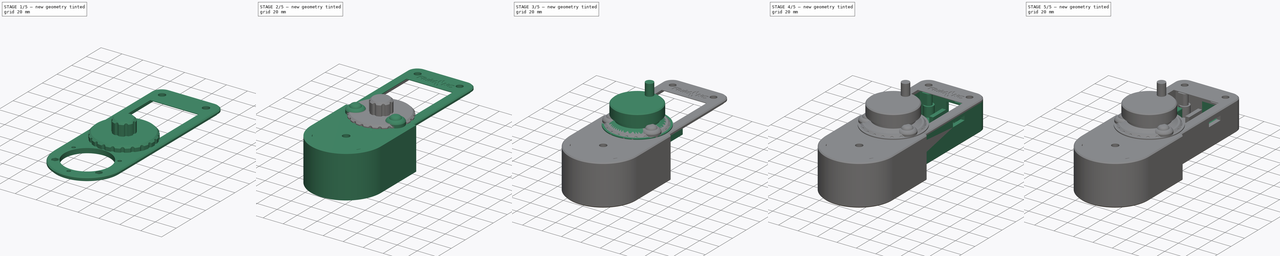
[diagram: build sequence overview — one tinted view per stage of 5, left to right]
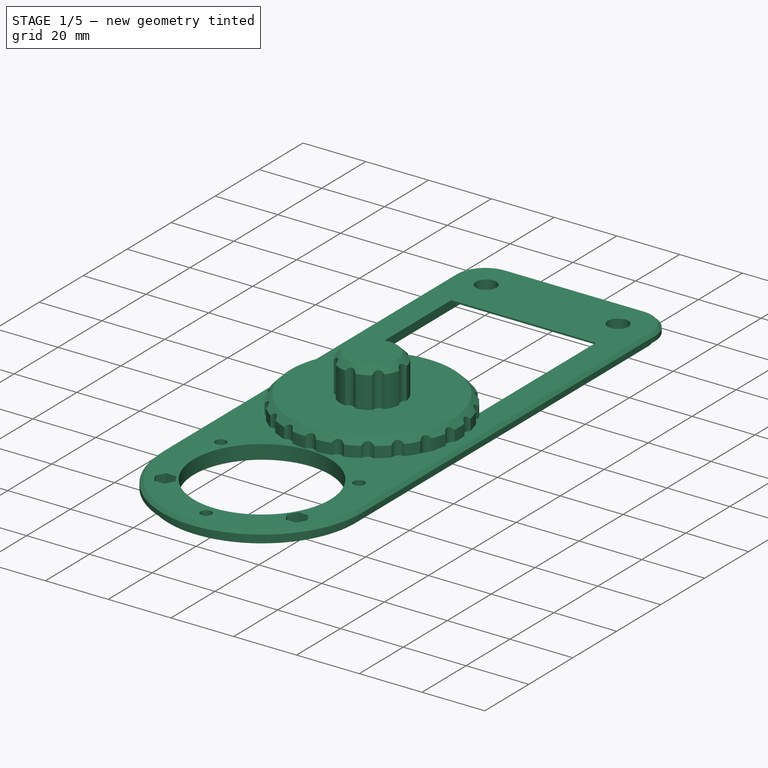
[diagram: stage 1 of 5 — iso view after this stage's code; geometry added in this stage tinted green]
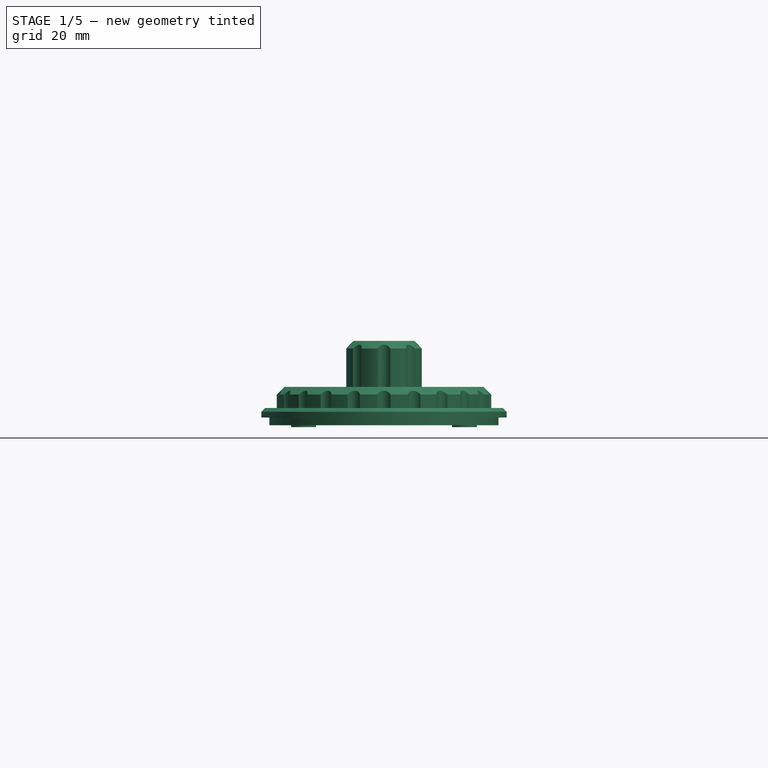
[diagram: stage 1 of 5 — front view after this stage's code; geometry added in this stage tinted green]
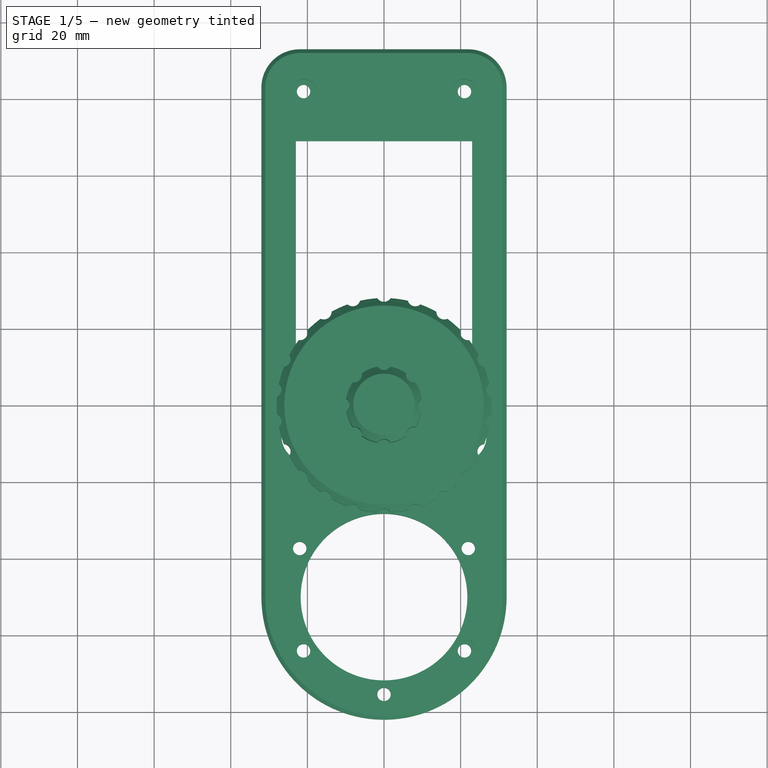
[diagram: stage 1 of 5 — top view after this stage's code; geometry added in this stage tinted green]
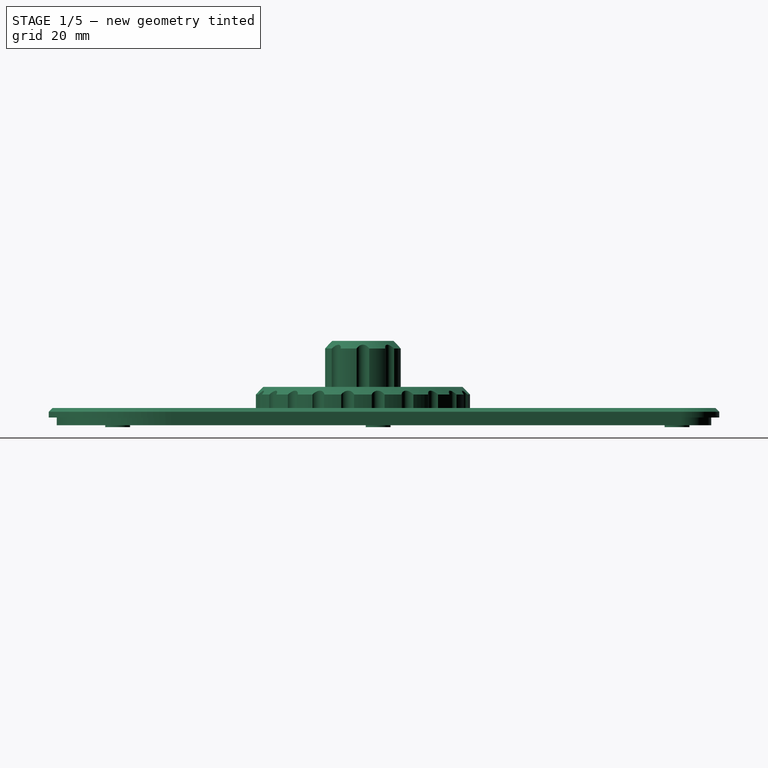
[diagram: stage 1 of 5 — right view after this stage's code; geometry added in this stage tinted green]
FCSTD DOCUMENT  (FreeCAD 1.0R39109 (Git))
Label: CYD_Dial_JC2432W328C
License: All rights reserved
LicenseURL: http://en.wikipedia.org/wiki/All_rights_reserved
objects: Sketcher::SketchObject×43, PartDesign::Pocket×21, PartDesign::Pad×15, PartDesign::Body×14, Part::FeaturePython×9, Part::Part2DObjectPython×6, PartDesign::Revolution×4, Part::Compound×4, PartDesign::Chamfer×3, Part::Extrusion×3, PartDesign::Groove×3, App::DocumentObjectGroup×3, PartDesign::Fillet×2, PartDesign::PolarPattern×2, Part::Cut×1
note: 271 computed .brp shape members not serialized (recipe doc carries the construction recipe); baked Part::Feature solids carry a one-line shape summary decoded from their .brp

FEATURE [Part::Part2DObjectPython] Clone2D  label="Sketch (2D)"  # Draft 2D object (typed FeaturePython)
  Fuse = false
  Objects = -> [Sketch]
  Scale = (1,1,1)
FEATURE [Sketcher::SketchObject] Sketch010
  ArcFitTolerance = 1e-06
  AttachmentOffset = pos=(0,0,-1) rot=(0,0,1;0rad)
  AttachmentSupport = -> [XY_Plane001]
  FullyConstrained = true
  MakeInternals = false
  MapMode = 5
  Placement = pos=(0,0,-1) rot=(0,0,1;0rad)
  sketch-geometry (22):
    g0: Circle CenterX=-21.997 CenterY=-37.3 CenterZ=0 NormalX=0 NormalY=0 NormalZ=1 AngleXU=0 Radius=1.75
    g1: Circle CenterX=21.997 CenterY=-37.3 CenterZ=0 NormalX=0 NormalY=0 NormalZ=1 AngleXU=0 Radius=1.75
    g2: Circle CenterX=21 CenterY=4 CenterZ=0 NormalX=0 NormalY=0 NormalZ=1 AngleXU=0 Radius=1.75
    g3: Circle CenterX=-21 CenterY=4 CenterZ=0 NormalX=0 NormalY=0 NormalZ=1 AngleXU=0 Radius=1.75
    g4: Circle CenterX=21 CenterY=82 CenterZ=0 NormalX=0 NormalY=0 NormalZ=1 AngleXU=0 Radius=1.75
    g5: Circle CenterX=-21 CenterY=82 CenterZ=0 NormalX=0 NormalY=0 NormalZ=1 AngleXU=0 Radius=1.75
    g6: Circle CenterX=0 CenterY=-75.4 CenterZ=0 NormalX=0 NormalY=0 NormalZ=1 AngleXU=0 Radius=1.75
    g7: LineSegment [constr] StartX=-21.997 StartY=-37.3 StartZ=0 EndX=0 EndY=-75.4 EndZ=0
    g8: LineSegment [constr] StartX=0 StartY=-75.4 StartZ=0 EndX=21.997 EndY=-37.3 EndZ=0
    g9: LineSegment [constr] StartX=21.997 StartY=-37.3 StartZ=0 EndX=-21.997 EndY=-37.3 EndZ=0
    g10: Circle [constr] CenterX=2e-16 CenterY=-50 CenterZ=0 NormalX=0 NormalY=0 NormalZ=1 AngleXU=0 Radius=25.4
    g11: Circle CenterX=2e-16 CenterY=-50 CenterZ=0 NormalX=0 NormalY=0 NormalZ=1 AngleXU=0 Radius=21.75
    g12: LineSegment StartX=-23 StartY=69 StartZ=0 EndX=-23 EndY=10 EndZ=0
    g13: LineSegment StartX=-23 StartY=10 StartZ=0 EndX=23 EndY=10 EndZ=0
    g14: LineSegment StartX=23 StartY=10 StartZ=0 EndX=23 EndY=69 EndZ=0
    g15: LineSegment StartX=23 StartY=69 StartZ=0 EndX=-23 EndY=69 EndZ=0
    g16: Circle [constr] CenterX=2e-16 CenterY=-50 CenterZ=0 NormalX=0 NormalY=0 NormalZ=1 AngleXU=0 Radius=30
    g17: Circle CenterX=-20 CenterY=-8 CenterZ=0 NormalX=0 NormalY=0 NormalZ=1 AngleXU=0 Radius=6.75
    g18: Circle CenterX=0 CenterY=-8 CenterZ=0 NormalX=0 NormalY=0 NormalZ=1 AngleXU=0 Radius=6.75
    g19: Circle CenterX=20 CenterY=-8 CenterZ=0 NormalX=0 NormalY=0 NormalZ=1 AngleXU=0 Radius=6.75
    g20: Circle CenterX=-21 CenterY=-64 CenterZ=0 NormalX=0 NormalY=0 NormalZ=1 AngleXU=0 Radius=1.75
    g21: Circle CenterX=21 CenterY=-64 CenterZ=0 NormalX=0 NormalY=0 NormalZ=1 AngleXU=0 Radius=1.75
  constraints (56):
    c: Diameter(g0) = 3.5
    c: Equal(g0,g1)
    c: Equal(g2,g3)
    c: Equal(g3,g5)
    c: Equal(g5,g4)
    c: Horizontal(g3,g2)
    c: Symmetric(g4,g5,g-2)
    c: Vertical(g5,g3)
    c: Vertical(g2,g4)
    c: DistanceY(g-1,g2) = 4
    c: DistanceX(g-1,g2) = 21
    c: DistanceY(g2,g4) = 78
    c: Symmetric(g0,g1,g-2)
    c: PointOnObject(g6,g-2)
    c: Equal(g6,g0)
    c: Coincident(g7,g8)
    c: Coincident(g8,g9)
    c: Coincident(g9,g7)
    c: Equal(g7,g9)
    c: PointOnObject(g7,g10)
    c: PointOnObject(g8,g10)
    c: PointOnObject(g9,g10)
    c: Coincident(g7,g0)
    c: Coincident(g8,g1)
    c: Coincident(g6,g7)
    c: Diameter(g10) = 50.8
    c: DistanceY(g10,g-1) = 50
    c: Diameter(g11) = 43.5
    c: Coincident(g11,g10)
    c: Coincident(g12,g13)
    c: Coincident(g13,g14)
    c: Coincident(g14,g15)
    c: Coincident(g15,g12)
    c: Vertical(g12)
    c: Vertical(g14)
    c: Horizontal(g15)
    c: Symmetric(g13,g12,g-2)
    c: DistanceX(g13,g13) = 46
    c: DistanceY(g14,g14) = 59
    c: DistanceY(g-1,g13) = 10
    c: Coincident(g16,g10)
    c: Diameter(g16) = 60
    c: Diameter(g2) = 3.5
    c: Diameter(g17) = 13.5
    c: PointOnObject(g18,g-2)
    c: Equal(g19,g18)
    c: Equal(g18,g17)
    c: Symmetric(g17,g19,g-2)
    c: Horizontal(g19,g18)
    c: DistanceY(g18,g-1) = 8
    c: DistanceX(g17,g18) = 20
    c: Symmetric(g21,g20,g-2)
    c: Vertical(g20,g3)
    c: DistanceY(g21,g-1) = 64
    c: Equal(g21,g20)
    c: Equal(g20,g3)
FEATURE [Sketcher::SketchObject] Sketch011
  ArcFitTolerance = 1e-06
  AttachmentOffset = pos=(0,0,-2) rot=(0,0,1;0rad)
  AttachmentSupport = -> [XY_Plane001]
  FullyConstrained = true
  MakeInternals = false
  MapMode = 5
  Placement = pos=(0,0,2) rot=(0,1,0;3.14159rad)
  sketch-geometry (4):
    g0: LineSegment StartX=25.25 StartY=7.75 StartZ=0 EndX=25.25 EndY=78.75 EndZ=0
    g1: LineSegment StartX=25.25 StartY=78.75 StartZ=0 EndX=-25.25 EndY=78.75 EndZ=0
    g2: LineSegment StartX=-25.25 StartY=78.75 StartZ=0 EndX=-25.25 EndY=7.75 EndZ=0
    g3: LineSegment StartX=-25.25 StartY=7.75 StartZ=0 EndX=25.25 EndY=7.75 EndZ=0
  constraints (11):
    c: Coincident(g0,g1)
    c: Coincident(g1,g2)
    c: Coincident(g2,g3)
    c: Coincident(g3,g0)
    c: Vertical(g0)
    c: Vertical(g2)
    c: Horizontal(g1)
    c: DistanceY(g-1,g0) = 7.75
    c: DistanceX(g-1,g0) = 25.25
    c: Symmetric(g0,g2,g-2)
    c: DistanceY(g0,g0) = 71
FEATURE [Sketcher::SketchObject] Sketch012
  ArcFitTolerance = 1e-06
  AttachmentSupport = -> [XY_Plane001]
  FullyConstrained = true
  MakeInternals = false
  MapMode = 5
  Placement = pos=(0,0,0) rot=(0,1,0;3.14159rad)
  sketch-geometry (10):
    g0: ArcOfCircle CenterX=-21.9 CenterY=82.9 CenterZ=0 NormalX=0 NormalY=0 NormalZ=1 AngleXU=0 Radius=8 StartAngle=1.5708 EndAngle=3.14159
    g1: ArcOfCircle CenterX=21.9 CenterY=82.9 CenterZ=0 NormalX=0 NormalY=0 NormalZ=1 AngleXU=0 Radius=8 StartAngle=6e-16 EndAngle=1.5708
    g2: ArcOfCircle CenterX=0 CenterY=-50 CenterZ=0 NormalX=0 NormalY=0 NormalZ=1 AngleXU=0 Radius=29.9 StartAngle=3.14159 EndAngle=6.28319
    g3: LineSegment StartX=-29.9 StartY=-50 StartZ=0 EndX=-29.9 EndY=82.9 EndZ=0
    g4: LineSegment StartX=-21.9 StartY=90.9 StartZ=0 EndX=21.9 EndY=90.9 EndZ=0
    g5: LineSegment StartX=29.9 StartY=82.9 StartZ=0 EndX=29.9 EndY=-50 EndZ=0
    g6: LineSegment StartX=-50 StartY=110 StartZ=0 EndX=-50 EndY=-90 EndZ=0
    g7: LineSegment StartX=-50 StartY=-90 StartZ=0 EndX=50 EndY=-90 EndZ=0
    g8: LineSegment StartX=50 StartY=-90 StartZ=0 EndX=50 EndY=110 EndZ=0
    g9: LineSegment StartX=50 StartY=110 StartZ=0 EndX=-50 EndY=110 EndZ=0
  constraints (26):
    c: PointOnObject(g2,g-2)
    c: Vertical(g3)
    c: Horizontal(g4)
    c: Vertical(g5)
    c: Tangent(g5,g2) = 1.5708
    c: Tangent(g3,g2) = 1.5708
    c: Tangent(g4,g1) = 1.5708
    c: Tangent(g5,g1) = 1.5708
    c: Tangent(g3,g0) = 1.5708
    c: Tangent(g4,g0) = 1.5708
    c: Equal(g0,g1)
    c: Radius(g1) = 8
    c: DistanceY(g-1,g1) = 90.9
    c: DistanceX(g0,g-1) = 29.9
    c: DistanceY(g2,g-1) = 50
    c: Coincident(g6,g7)
    c: Coincident(g7,g8)
    c: Coincident(g8,g9)
    c: Coincident(g9,g6)
    c: Vertical(g6)
    c: Vertical(g8)
    c: Horizontal(g7)
    c: Symmetric(g8,g6,g-2)
    c: DistanceX(g9,g9) = 100
    c: DistanceY(g8,g8) = 200
    c: DistanceY(g7,g-1) = 90
FEATURE [PartDesign::Pad] Pad002
  Direction = (0,0,1)
  Length = 2.5
  Length2 = 2
  Profile = -> Clone2D
  ReferenceAxis = -> Clone2D [N_Axis]
  Suppressed = false
  Type = 4
FEATURE [PartDesign::Pocket] Pocket008
  BaseFeature = -> Pad002
  Direction = (0,0,-1)
  Length = 5
  Length2 = 5
  Midplane = true
  Profile = -> Sketch010
  ReferenceAxis = -> Sketch010 [N_Axis]
  Suppressed = false
  Type = 1
FEATURE [PartDesign::Pocket] Pocket009
  BaseFeature = -> Pocket008
  Direction = (0,0,1)
  Length = 5
  Length2 = 5
  Profile = -> Sketch011
  ReferenceAxis = -> Sketch011 [N_Axis]
  Reversed = true
  Suppressed = false
  Type = 0
FEATURE [PartDesign::Pocket] Pocket010
  BaseFeature = -> Pocket009
  Direction = (0,0,1)
  Length = 5
  Length2 = 5
  Profile = -> Sketch012
  ReferenceAxis = -> Sketch012 [N_Axis]
  Reversed = true
  Suppressed = false
  Type = 0
FEATURE [PartDesign::Chamfer] Chamfer001
  Angle = 45
  Base = -> Pocket010 [Edge21]
  BaseFeature = -> Pocket010
  ChamferType = 0
  FlipDirection = false
  Size = 1
  Size2 = 1
  SupportTransform = false
  Suppressed = false
  UseAllEdges = false
FEATURE [PartDesign::Body] Body007  label="Encoder"
  AllowCompound = false
  Group = -> [Sketch025,Revolution,Sketch026,Pad008,Sketch027,Pad009]
  Origin = -> Origin007
  Placement = pos=(-1.8e-15,-50,5) rot=(0,0,1;3.14159rad)
  Tip = -> Pad009
FEATURE [Sketcher::SketchObject] Sketch028
  ArcFitTolerance = 1e-06
  AttachmentOffset = pos=(0,0,2) rot=(0,0,1;0rad)
  AttachmentSupport = -> [XY_Plane001]
  FullyConstrained = true
  MakeInternals = false
  MapMode = 5
  Placement = pos=(0,0,-2) rot=(0,1,0;3.14159rad)
  sketch-geometry (12):
    g0: Circle CenterX=-21 CenterY=82 CenterZ=0 NormalX=0 NormalY=0 NormalZ=1 AngleXU=0 Radius=3.25
    g1: Circle CenterX=-21 CenterY=82 CenterZ=0 NormalX=0 NormalY=0 NormalZ=1 AngleXU=0 Radius=1.75
    g2: Circle CenterX=21 CenterY=82 CenterZ=0 NormalX=0 NormalY=0 NormalZ=1 AngleXU=0 Radius=1.75
    g3: Circle CenterX=21 CenterY=82 CenterZ=0 NormalX=0 NormalY=0 NormalZ=1 AngleXU=0 Radius=3.25
    g4: Circle CenterX=-21 CenterY=4 CenterZ=0 NormalX=0 NormalY=0 NormalZ=1 AngleXU=0 Radius=3.25
    g5: Circle CenterX=-21 CenterY=4 CenterZ=0 NormalX=0 NormalY=0 NormalZ=1 AngleXU=0 Radius=1.75
    g6: Circle CenterX=21 CenterY=4 CenterZ=0 NormalX=0 NormalY=0 NormalZ=1 AngleXU=0 Radius=3.25
    g7: Circle CenterX=21 CenterY=4 CenterZ=0 NormalX=0 NormalY=0 NormalZ=1 AngleXU=0 Radius=1.75
    g8: Circle CenterX=-21 CenterY=-64 CenterZ=0 NormalX=0 NormalY=0 NormalZ=1 AngleXU=0 Radius=1.75
    g9: Circle CenterX=-21 CenterY=-64 CenterZ=0 NormalX=0 NormalY=0 NormalZ=1 AngleXU=0 Radius=3.25
    g10: Circle CenterX=21 CenterY=-64 CenterZ=0 NormalX=0 NormalY=0 NormalZ=1 AngleXU=0 Radius=1.75
    g11: Circle CenterX=21 CenterY=-64 CenterZ=0 NormalX=0 NormalY=0 NormalZ=1 AngleXU=0 Radius=3.25
  constraints (28):
    c: Coincident(g1,g0)
    c: DistanceX(g0,g-1) = 21
    c: DistanceY(g-1,g0) = 82
    c: Diameter(g1) = 3.5
    c: Diameter(g0) = 6.5
    c: Coincident(g3,g2)
    c: Coincident(g5,g4)
    c: Coincident(g7,g6)
    c: Equal(g7,g5)
    c: Equal(g5,g1)
    c: Equal(g1,g2)
    c: Equal(g3,g0)
    c: Equal(g0,g6)
    c: Equal(g6,g4)
    c: Symmetric(g4,g6,g-2)
    c: Vertical(g4,g0)
    c: Vertical(g6,g2)
    c: Horizontal(g2,g0)
    c: DistanceY(g-1,g6) = 4
    c: Coincident(g9,g8)
    c: Coincident(g11,g10)
    c: Equal(g10,g8)
    c: Equal(g8,g5)
    c: Equal(g9,g11)
    c: Equal(g11,g6)
    c: Symmetric(g10,g8,g-2)
    c: Vertical(g8,g4)
    c: DistanceY(g8,g-1) = 64
FEATURE [PartDesign::Pad] Pad010
  BaseFeature = -> Chamfer001
  Direction = (0,0,-1)
  Length = 0.5
  Length2 = 10
  Profile = -> Sketch028
  ReferenceAxis = -> Sketch028 [N_Axis]
  Suppressed = false
  Type = 0
FEATURE [Sketcher::SketchObject] Sketch029
  ArcFitTolerance = 1e-06
  AttachmentOffset = pos=(0,0,2.5) rot=(0,0,1;0rad)
  AttachmentSupport = -> [XY_Plane001]
  FullyConstrained = true
  MakeInternals = false
  MapMode = 5
  Placement = pos=(0,0,2.5) rot=(0,0,1;0rad)
  sketch-geometry (18):
    g0: Circle CenterX=-21 CenterY=4 CenterZ=0 NormalX=0 NormalY=0 NormalZ=1 AngleXU=0 Radius=3.25
    g1: Circle CenterX=21 CenterY=4 CenterZ=0 NormalX=0 NormalY=0 NormalZ=1 AngleXU=0 Radius=3.25
    g2: Circle CenterX=21 CenterY=82 CenterZ=0 NormalX=0 NormalY=0 NormalZ=1 AngleXU=0 Radius=3.25
    g3: Circle CenterX=-21 CenterY=82 CenterZ=0 NormalX=0 NormalY=0 NormalZ=1 AngleXU=0 Radius=3.25
    g4: LineSegment StartX=-19.3834 StartY=-61.2 StartZ=0 EndX=-22.6166 EndY=-61.2 EndZ=0
    g5: LineSegment StartX=-22.6166 StartY=-61.2 StartZ=0 EndX=-24.2332 EndY=-64 EndZ=0
    g6: LineSegment StartX=-24.2332 StartY=-64 StartZ=0 EndX=-22.6166 EndY=-66.8 EndZ=0
    g7: LineSegment StartX=-22.6166 StartY=-66.8 StartZ=0 EndX=-19.3834 EndY=-66.8 EndZ=0
    g8: LineSegment StartX=-19.3834 StartY=-66.8 StartZ=0 EndX=-17.7668 EndY=-64 EndZ=0
    g9: LineSegment StartX=-17.7668 StartY=-64 StartZ=0 EndX=-19.3834 EndY=-61.2 EndZ=0
    g10: Circle [constr] CenterX=-21 CenterY=-64 CenterZ=0 NormalX=0 NormalY=0 NormalZ=1 AngleXU=0 Radius=3.23316
    g11: LineSegment StartX=22.6166 StartY=-61.2 StartZ=0 EndX=19.3834 EndY=-61.2 EndZ=0
    g12: LineSegment StartX=19.3834 StartY=-61.2 StartZ=0 EndX=17.7668 EndY=-64 EndZ=0
    g13: LineSegment StartX=17.7668 StartY=-64 StartZ=0 EndX=19.3834 EndY=-66.8 EndZ=0
    g14: LineSegment StartX=19.3834 StartY=-66.8 StartZ=0 EndX=22.6166 EndY=-66.8 EndZ=0
    g15: LineSegment StartX=22.6166 StartY=-66.8 StartZ=0 EndX=24.2332 EndY=-64 EndZ=0
    g16: LineSegment StartX=24.2332 StartY=-64 StartZ=0 EndX=22.6166 EndY=-61.2 EndZ=0
    g17: Circle [constr] CenterX=21 CenterY=-64 CenterZ=0 NormalX=0 NormalY=0 NormalZ=1 AngleXU=0 Radius=3.23316
  constraints (43):
    c: Symmetric(g1,g0,g-2)
    c: Symmetric(g3,g2,g-2)
    c: Vertical(g1,g2)
    c: DistanceX(g-1,g2) = 21
    c: DistanceY(g-1,g2) = 82
    c: DistanceY(g-1,g1) = 4
    c: Equal(g3,g2)
    c: Equal(g2,g1)
    c: Equal(g1,g0)
    c: Diameter(g1) = 6.5
    c: Coincident(g4,g5)
    c: Coincident(g5,g6)
    c: Coincident(g6,g7)
    c: Coincident(g7,g8)
    c: Coincident(g8,g9)
    c: Coincident(g9,g4)
    c: Equal(g4, g5-g9) x5
    c: PointOnObject(g4,g10)
    c: PointOnObject(g5,g10)
    c: PointOnObject(g6,g10)
    c: PointOnObject(g7,g10)
    c: PointOnObject(g8,g10)
    c: PointOnObject(g9,g10)
    c: Coincident(g11,g12)
    c: Coincident(g12,g13)
    c: Coincident(g13,g14)
    c: Coincident(g14,g15)
    c: Coincident(g15,g16)
    c: Coincident(g16,g11)
    c: Equal(g11, g12-g16) x5
    c: PointOnObject(g11,g17)
    c: PointOnObject(g12,g17)
    c: PointOnObject(g13,g17)
    c: PointOnObject(g14,g17)
    c: PointOnObject(g15,g17)
    c: PointOnObject(g16,g17)
    c: Equal(g17,g10)
    c: Symmetric(g10,g17,g-2)
    c: Vertical(g17,g1)
    c: Horizontal(g11)
    c: Horizontal(g4)
    c: DistanceY(g17,g-1) = 64
    c: DistanceY(g14,g11) = 5.6
FEATURE [PartDesign::Pocket] Pocket015
  BaseFeature = -> Pad010
  Direction = (0,0,-1)
  Length = 3
  Length2 = 5
  Profile = -> Sketch029
  ReferenceAxis = -> Sketch029 [N_Axis]
  Suppressed = false
  Type = 0
FEATURE [Sketcher::SketchObject] Sketch030
  ArcFitTolerance = 1e-06
  AttachmentOffset = pos=(0,0,2) rot=(0,0,1;0rad)
  AttachmentSupport = -> [XY_Plane001]
  FullyConstrained = true
  MakeInternals = false
  MapMode = 5
  Placement = pos=(0,0,-2) rot=(0,1,0;3.14159rad)
  sketch-geometry (12):
    g0: LineSegment StartX=-17 StartY=7 StartZ=0 EndX=-17 EndY=1 EndZ=0
    g1: LineSegment StartX=-17 StartY=1 StartZ=0 EndX=-11 EndY=1 EndZ=0
    g2: LineSegment StartX=-11 StartY=1 StartZ=0 EndX=-11 EndY=7 EndZ=0
    g3: LineSegment StartX=11 StartY=7 StartZ=0 EndX=11 EndY=1 EndZ=0
    g4: LineSegment StartX=11 StartY=1 StartZ=0 EndX=17 EndY=1 EndZ=0
    g5: LineSegment StartX=17 StartY=1 StartZ=0 EndX=17 EndY=7 EndZ=0
    g6: LineSegment StartX=-11 StartY=7 StartZ=0 EndX=-11 EndY=7.75 EndZ=0
    g7: LineSegment StartX=-11 StartY=7.75 StartZ=0 EndX=11 EndY=7.75 EndZ=0
    g8: LineSegment StartX=11 StartY=7.75 StartZ=0 EndX=11 EndY=7 EndZ=0
    g9: LineSegment StartX=17 StartY=7 StartZ=0 EndX=17 EndY=10 EndZ=0
    g10: LineSegment StartX=17 StartY=10 StartZ=0 EndX=-17 EndY=10 EndZ=0
    g11: LineSegment StartX=-17 StartY=10 StartZ=0 EndX=-17 EndY=7 EndZ=0
  constraints (35):
    c: Coincident(g0,g1)
    c: Coincident(g1,g2)
    c: Vertical(g0)
    c: Vertical(g2)
    c: Horizontal(g1)
    c: Coincident(g3,g4)
    c: Coincident(g4,g5)
    c: Vertical(g3)
    c: Vertical(g5)
    c: Horizontal(g4)
    c: DistanceX(g2,g-1) = 11
    c: DistanceX(g0,g2) = 6
    c: DistanceY(g2,g2) = 6
    c: DistanceY(g-1,g0) = 1
    c: Equal(g2,g3)
    c: Symmetric(g3,g1,g-2)
    c: Coincident(g2,g6)
    c: Vertical(g6)
    c: Coincident(g6,g7)
    c: Horizontal(g7)
    c: Coincident(g7,g8)
    c: Coincident(g8,g3)
    c: Vertical(g8)
    c: Coincident(g5,g9)
    c: Vertical(g9)
    c: Coincident(g9,g10)
    c: Horizontal(g10)
    c: Coincident(g10,g11)
    c: Coincident(g11,g0)
    c: Vertical(g11)
    c: DistanceY(g9,g9) = 3
    c: Horizontal(g5,g3)
    c: Horizontal(g3,g0)
    c: Equal(g4,g3)
    c: DistanceY(g8,g8) = 0.75
FEATURE [PartDesign::Pocket] Pocket016
  BaseFeature = -> Pocket015
  Direction = (0,0,1)
  Length = 3
  Length2 = 5
  Profile = -> Sketch030
  ReferenceAxis = -> Sketch030 [N_Axis]
  Suppressed = false
  Type = 0
FEATURE [PartDesign::Body] Body012  label="Rotary Encoder Cap"
  AllowCompound = false
  Group = -> [Sketch041,Pad015,Sketch042,Pocket020]
  Origin = -> Origin012
  Tip = -> Pocket020
FEATURE [Sketcher::SketchObject] Sketch043
  ArcFitTolerance = 1e-06
  AttachmentSupport = -> [YZ_Plane013]
  FullyConstrained = true
  MakeInternals = false
  MapMode = 5
  Placement = pos=(0,0,0) rot=(0.57735,0.57735,0.57735;2.0944rad)
  sketch-geometry (10):
    g0: LineSegment StartX=0 StartY=12 StartZ=0 EndX=2.8 EndY=12 EndZ=0
    g1: LineSegment StartX=2.8 StartY=12 StartZ=0 EndX=3.1 EndY=0 EndZ=0
    g2: LineSegment StartX=3.1 StartY=0 StartZ=0 EndX=28 EndY=0 EndZ=0
    g3: LineSegment StartX=28 StartY=0 StartZ=0 EndX=28 EndY=6 EndZ=0
    g4: LineSegment StartX=28 StartY=6 StartZ=0 EndX=26 EndY=8 EndZ=0
    g5: LineSegment StartX=0 StartY=20 StartZ=0 EndX=0 EndY=12 EndZ=0
    g6: LineSegment StartX=26 StartY=8 StartZ=0 EndX=10 EndY=8 EndZ=0
    g7: LineSegment StartX=10 StartY=8 StartZ=0 EndX=10 EndY=18 EndZ=0
    g8: LineSegment StartX=10 StartY=18 StartZ=0 EndX=8 EndY=20 EndZ=0
    g9: LineSegment StartX=8 StartY=20 StartZ=0 EndX=0 EndY=20 EndZ=0
  constraints (30):
    c: PointOnObject(g0,g-2)
    c: Horizontal(g0)
    c: Coincident(g0,g1)
    c: PointOnObject(g1,g-1)
    c: Coincident(g1,g2)
    c: PointOnObject(g2,g-1)
    c: Coincident(g2,g3)
    c: Vertical(g3)
    c: Coincident(g3,g4)
    c: PointOnObject(g5,g-2)
    c: Coincident(g5,g0)
    c: DistanceX(g0,g0) = 2.8
    c: DistanceY(g1,g1) = 12
    c: DistanceX(g4,g4) = 2
    c: DistanceY(g4,g4) = 2
    c: DistanceX(g-1,g3) = 28
    c: DistanceY(g-1,g4) = 8
    c: Distance(g1,g-1) = 3.1
    c: Coincident(g4,g6)
    c: Horizontal(g6)
    c: Coincident(g6,g7)
    c: Vertical(g7)
    c: Coincident(g7,g8)
    c: Coincident(g8,g9)
    c: Horizontal(g9)
    c: Coincident(g5,g9)
    c: Equal(g4,g8)
    c: DistanceY(g6,g8) = 12
    c: DistanceY(g8,g8) = 2
    c: DistanceX(g-1,g7) = 10
FEATURE [PartDesign::Revolution] Revolution002
  Angle = 360
  Angle2 = 60
  Axis = (0,0,1)
  Base = (0,0,0)
  Placement = pos=(0,0,0) rot=(1,1,1;2.0944rad)
  Profile = -> Sketch043
  ReferenceAxis = -> Sketch043 [V_Axis]
  Reversed = true
  Suppressed = false
  Type = 0
FEATURE [Sketcher::SketchObject] Sketch044
  ArcFitTolerance = 1e-06
  AttachmentSupport = -> [XY_Plane013]
  FullyConstrained = true
  MakeInternals = false
  MapMode = 5
  sketch-geometry (1):
    g0: Circle CenterX=0 CenterY=29 CenterZ=0 NormalX=0 NormalY=0 NormalZ=1 AngleXU=0 Radius=2
  constraints (3):
    c: PointOnObject(g0,g-2)
    c: DistanceY(g-1,g0) = 29
    c: Diameter(g0) = 4
FEATURE [PartDesign::Pocket] Pocket021
  BaseFeature = -> Revolution002
  Direction = (0,0,-1)
  Length = 5
  Length2 = 5
  Placement = pos=(0,0,0) rot=(1,1,1;2.0944rad)
  Profile = -> Sketch044
  ReferenceAxis = -> Sketch044 [N_Axis]
  Reversed = true
  Suppressed = false
  Type = 1
FEATURE [PartDesign::PolarPattern] PolarPattern
  Angle = 360
  Axis = -> Z_Axis013
  BaseFeature = -> Pocket021
  Mode = 0
  Occurrences = 22
  Offset = 120
  Originals = -> [Pocket021]
  Placement = pos=(0,0,0) rot=(1,1,1;2.0944rad)
  Suppressed = false
  TransformMode = 0
FEATURE [App::DocumentObjectGroup] Group  label="Top Group"
  Group = -> [Body012,Compound004,Clone,Cut,Extrude002]
FEATURE [Sketcher::SketchObject] Sketch047
  ArcFitTolerance = 1e-06
  AttachmentOffset = pos=(0,0,8) rot=(0,0,1;0rad)
  AttachmentSupport = -> [XY_Plane013]
  FullyConstrained = true
  MakeInternals = false
  MapMode = 5
  Placement = pos=(0,0,8) rot=(0,0,1;0rad)
  sketch-geometry (1):
    g0: Circle CenterX=0 CenterY=11 CenterZ=0 NormalX=0 NormalY=0 NormalZ=1 AngleXU=0 Radius=2
  constraints (3):
    c: PointOnObject(g0,g-2)
    c: DistanceY(g-1,g0) = 11
    c: Diameter(g0) = 4
FEATURE [PartDesign::Pocket] Pocket022
  BaseFeature = -> PolarPattern
  Direction = (0,0,-1)
  Length = 5
  Length2 = 5
  Placement = pos=(0,0,0) rot=(1,1,1;2.0944rad)
  Profile = -> Sketch047
  ReferenceAxis = -> Sketch047 [N_Axis]
  Reversed = true
  Suppressed = false
  Type = 1
FEATURE [PartDesign::PolarPattern] PolarPattern001
  Angle = 360
  Axis = -> Sketch047 [N_Axis]
  BaseFeature = -> Pocket022
  Mode = 0
  Occurrences = 8
  Offset = 120
  Originals = -> [Pocket022]
  Placement = pos=(0,0,0) rot=(1,1,1;2.0944rad)
  Suppressed = false
  TransformMode = 0
FEATURE [PartDesign::Body] Body013  label="Rotary Button"
  AllowCompound = false
  Group = -> [Sketch043,Revolution002,Sketch044,Pocket021,PolarPattern,Sketch047,Pocket022,PolarPattern001]
  Origin = -> Origin013
  Placement = pos=(0,-50,6) rot=(0,0,1;0rad)
  Tip = -> PolarPattern001
FEATURE [App::DocumentObjectGroup] Group002  label="Other parts"
  Group = -> [Body009,Clone004,Clone005,Body007,Body002,Body013,Body014,Body008]
note: 2 file-system paths scrubbed to <path> (originals preserved in the JSON sidecar)
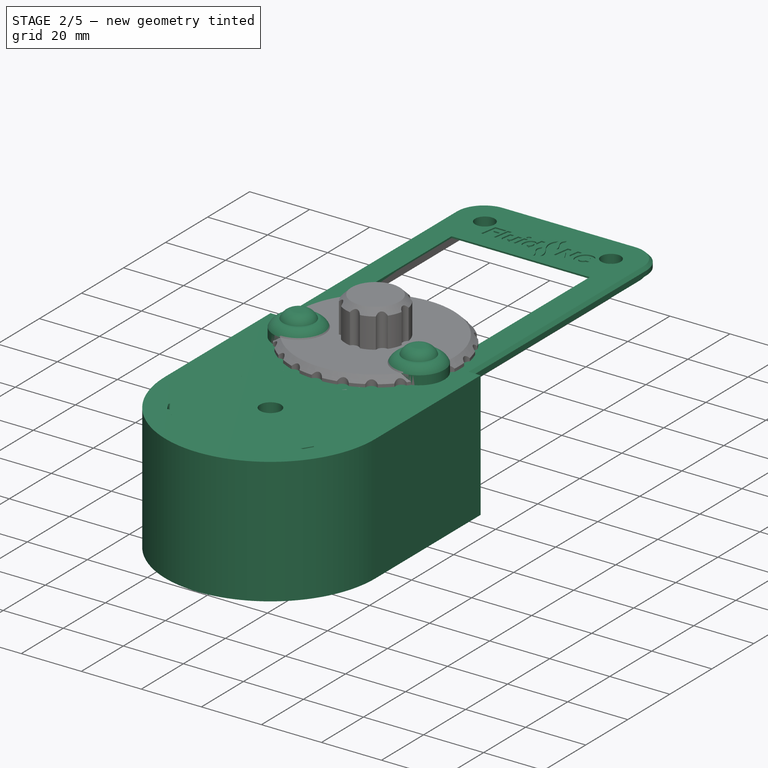
[diagram: stage 2 of 5 — iso view after this stage's code; geometry added in this stage tinted green]
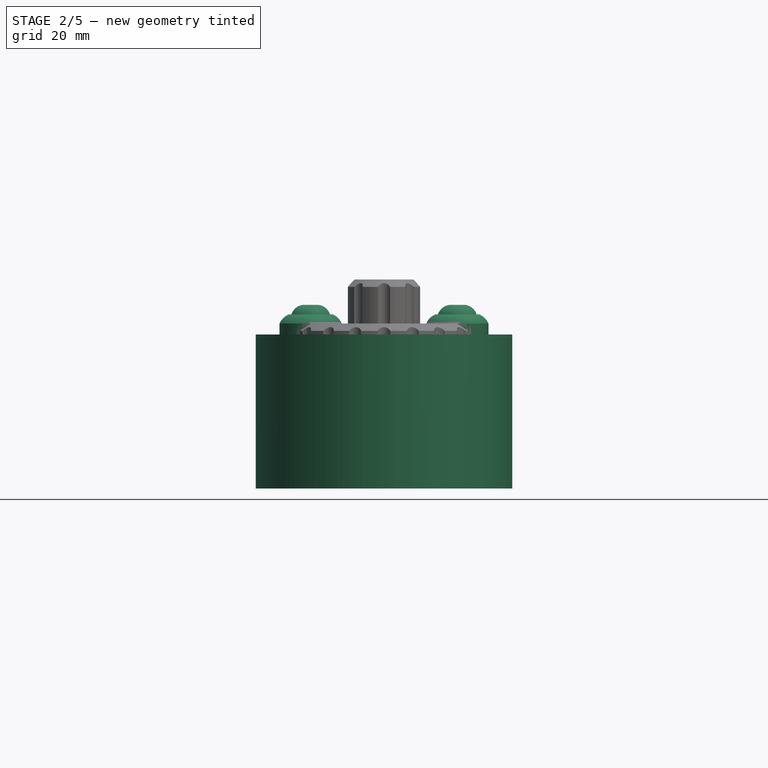
[diagram: stage 2 of 5 — front view after this stage's code; geometry added in this stage tinted green]
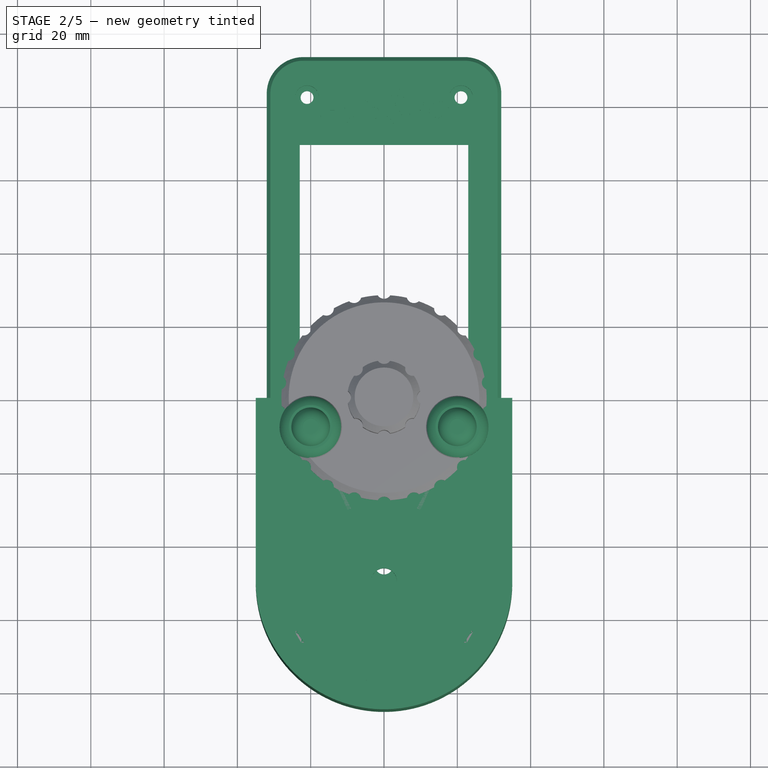
[diagram: stage 2 of 5 — top view after this stage's code; geometry added in this stage tinted green]
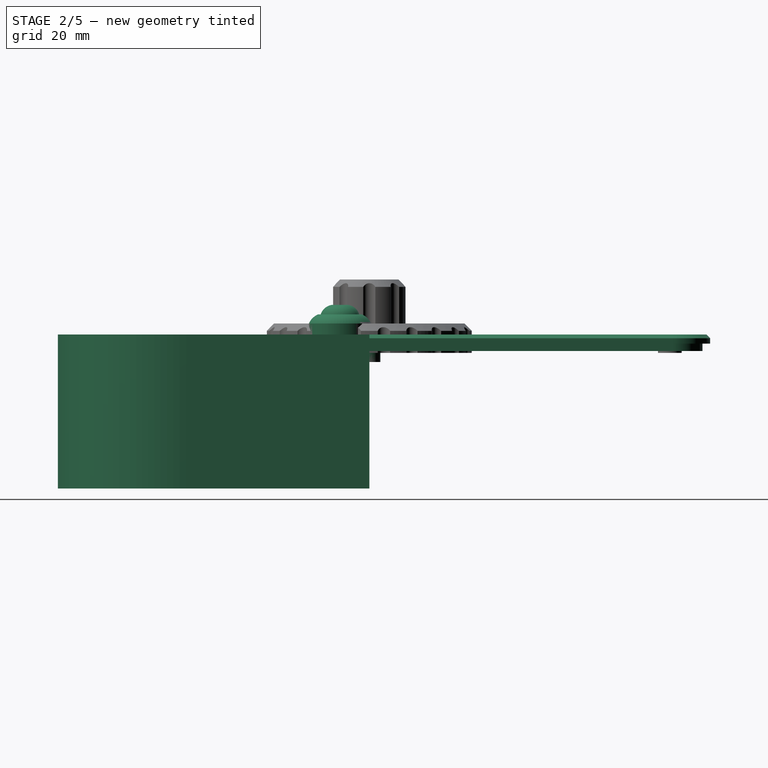
[diagram: stage 2 of 5 — right view after this stage's code; geometry added in this stage tinted green]
FEATURE [Sketcher::SketchObject] Sketch013
  ArcFitTolerance = 1e-06
  FullyConstrained = false
  MakeInternals = false
  Placement = pos=(0,78,5) rot=(0,0,1;0rad)
  sketch-geometry (133):
    g0: BSplineCurve PolesCount=2 KnotsCount=2 Degree=1 IsPeriodic=0
    g1: BSplineCurve PolesCount=2 KnotsCount=2 Degree=1 IsPeriodic=0
    g2: BSplineCurve PolesCount=2 KnotsCount=2 Degree=1 IsPeriodic=0
    g3: BSplineCurve PolesCount=2 KnotsCount=2 Degree=1 IsPeriodic=0
    g4: BSplineCurve PolesCount=2 KnotsCount=2 Degree=1 IsPeriodic=0
    g5: BSplineCurve PolesCount=2 KnotsCount=2 Degree=1 IsPeriodic=0
    g6: BSplineCurve PolesCount=2 KnotsCount=2 Degree=1 IsPeriodic=0
    g7: BSplineCurve PolesCount=2 KnotsCount=2 Degree=1 IsPeriodic=0
    g8: BSplineCurve PolesCount=2 KnotsCount=2 Degree=1 IsPeriodic=0
    g9: BSplineCurve PolesCount=2 KnotsCount=2 Degree=1 IsPeriodic=0
    g10: BSplineCurve PolesCount=2 KnotsCount=2 Degree=1 IsPeriodic=0
    g11: BSplineCurve PolesCount=2 KnotsCount=2 Degree=1 IsPeriodic=0
    g12: BSplineCurve PolesCount=2 KnotsCount=2 Degree=1 IsPeriodic=0
    g13: BSplineCurve PolesCount=2 KnotsCount=2 Degree=1 IsPeriodic=0
    g14: BSplineCurve PolesCount=2 KnotsCount=2 Degree=1 IsPeriodic=0
    g15: BSplineCurve PolesCount=2 KnotsCount=2 Degree=1 IsPeriodic=0
    g16: BSplineCurve PolesCount=2 KnotsCount=2 Degree=1 IsPeriodic=0
    g17: BSplineCurve PolesCount=2 KnotsCount=2 Degree=1 IsPeriodic=0
    g18: BSplineCurve PolesCount=2 KnotsCount=2 Degree=1 IsPeriodic=0
    g19: BSplineCurve PolesCount=2 KnotsCount=2 Degree=1 IsPeriodic=0
    g20: BSplineCurve PolesCount=4 KnotsCount=2 Degree=3 IsPeriodic=0
    g21: BSplineCurve PolesCount=4 KnotsCount=2 Degree=3 IsPeriodic=0
    g22: BSplineCurve PolesCount=4 KnotsCount=2 Degree=3 IsPeriodic=0
    g23: BSplineCurve PolesCount=4 KnotsCount=2 Degree=3 IsPeriodic=0
    g24: BSplineCurve PolesCount=4 KnotsCount=2 Degree=3 IsPeriodic=0
    g25: BSplineCurve PolesCount=2 KnotsCount=2 Degree=1 IsPeriodic=0
    g26: BSplineCurve PolesCount=2 KnotsCount=2 Degree=1 IsPeriodic=0
    g27: BSplineCurve PolesCount=2 KnotsCount=2 Degree=1 IsPeriodic=0
    g28: BSplineCurve PolesCount=4 KnotsCount=2 Degree=3 IsPeriodic=0
    g29: BSplineCurve PolesCount=4 KnotsCount=2 Degree=3 IsPeriodic=0
    g30: BSplineCurve PolesCount=4 KnotsCount=2 Degree=3 IsPeriodic=0
    g31: BSplineCurve PolesCount=4 KnotsCount=2 Degree=3 IsPeriodic=0
    g32: BSplineCurve PolesCount=4 KnotsCount=2 Degree=3 IsPeriodic=0
    g33: BSplineCurve PolesCount=2 KnotsCount=2 Degree=1 IsPeriodic=0
    g34: BSplineCurve PolesCount=2 KnotsCount=2 Degree=1 IsPeriodic=0
    g35: BSplineCurve PolesCount=2 KnotsCount=2 Degree=1 IsPeriodic=0
    g36: BSplineCurve PolesCount=2 KnotsCount=2 Degree=1 IsPeriodic=0
    g37: BSplineCurve PolesCount=4 KnotsCount=2 Degree=3 IsPeriodic=0
    g38: BSplineCurve PolesCount=4 KnotsCount=2 Degree=3 IsPeriodic=0
    g39: BSplineCurve PolesCount=4 KnotsCount=2 Degree=3 IsPeriodic=0
    g40: BSplineCurve PolesCount=4 KnotsCount=2 Degree=3 IsPeriodic=0
    g41: BSplineCurve PolesCount=4 KnotsCount=2 Degree=3 IsPeriodic=0
    g42: BSplineCurve PolesCount=4 KnotsCount=2 Degree=3 IsPeriodic=0
    g43: BSplineCurve PolesCount=4 KnotsCount=2 Degree=3 IsPeriodic=0
    g44: BSplineCurve PolesCount=4 KnotsCount=2 Degree=3 IsPeriodic=0
    g45: BSplineCurve PolesCount=4 KnotsCount=2 Degree=3 IsPeriodic=0
    g46: BSplineCurve PolesCount=4 KnotsCount=2 Degree=3 IsPeriodic=0
    g47: BSplineCurve PolesCount=4 KnotsCount=2 Degree=3 IsPeriodic=0
    g48: BSplineCurve PolesCount=4 KnotsCount=2 Degree=3 IsPeriodic=0
    g49: BSplineCurve PolesCount=4 KnotsCount=2 Degree=3 IsPeriodic=0
    g50: BSplineCurve PolesCount=4 KnotsCount=2 Degree=3 IsPeriodic=0
    g51: BSplineCurve PolesCount=4 KnotsCount=2 Degree=3 IsPeriodic=0
    g52: BSplineCurve PolesCount=4 KnotsCount=2 Degree=3 IsPeriodic=0
    g53: BSplineCurve PolesCount=4 KnotsCount=2 Degree=3 IsPeriodic=0
    g54: BSplineCurve PolesCount=2 KnotsCount=2 Degree=1 IsPeriodic=0
    g55: BSplineCurve PolesCount=2 KnotsCount=2 Degree=1 IsPeriodic=0
    g56: BSplineCurve PolesCount=2 KnotsCount=2 Degree=1 IsPeriodic=0
    g57: BSplineCurve PolesCount=2 KnotsCount=2 Degree=1 IsPeriodic=0
    g58: BSplineCurve PolesCount=2 KnotsCount=2 Degree=1 IsPeriodic=0
    g59: BSplineCurve PolesCount=2 KnotsCount=2 Degree=1 IsPeriodic=0
    g60: BSplineCurve PolesCount=2 KnotsCount=2 Degree=1 IsPeriodic=0
    g61: BSplineCurve PolesCount=4 KnotsCount=2 Degree=3 IsPeriodic=0
    g62: BSplineCurve PolesCount=4 KnotsCount=2 Degree=3 IsPeriodic=0
    g63: BSplineCurve PolesCount=4 KnotsCount=2 Degree=3 IsPeriodic=0
    g64: BSplineCurve PolesCount=4 KnotsCount=2 Degree=3 IsPeriodic=0
    g65: BSplineCurve PolesCount=4 KnotsCount=2 Degree=3 IsPeriodic=0
    g66: BSplineCurve PolesCount=4 KnotsCount=2 Degree=3 IsPeriodic=0
    g67: BSplineCurve PolesCount=4 KnotsCount=2 Degree=3 IsPeriodic=0
    g68: BSplineCurve PolesCount=4 KnotsCount=2 Degree=3 IsPeriodic=0
    g69: BSplineCurve PolesCount=4 KnotsCount=2 Degree=3 IsPeriodic=0
    g70: BSplineCurve PolesCount=4 KnotsCount=2 Degree=3 IsPeriodic=0
    g71: BSplineCurve PolesCount=4 KnotsCount=2 Degree=3 IsPeriodic=0
    g72: BSplineCurve PolesCount=4 KnotsCount=2 Degree=3 IsPeriodic=0
    g73: BSplineCurve PolesCount=4 KnotsCount=2 Degree=3 IsPeriodic=0
    g74: BSplineCurve PolesCount=4 KnotsCount=2 Degree=3 IsPeriodic=0
    g75: BSplineCurve PolesCount=4 KnotsCount=2 Degree=3 IsPeriodic=0
    g76: BSplineCurve PolesCount=2 KnotsCount=2 Degree=1 IsPeriodic=0
    g77: BSplineCurve PolesCount=2 KnotsCount=2 Degree=1 IsPeriodic=0
    g78: BSplineCurve PolesCount=2 KnotsCount=2 Degree=1 IsPeriodic=0
    g79: BSplineCurve PolesCount=2 KnotsCount=2 Degree=1 IsPeriodic=0
    g80: BSplineCurve PolesCount=2 KnotsCount=2 Degree=1 IsPeriodic=0
    g81: BSplineCurve PolesCount=2 KnotsCount=2 Degree=1 IsPeriodic=0
    g82: BSplineCurve PolesCount=2 KnotsCount=2 Degree=1 IsPeriodic=0
    g83: BSplineCurve PolesCount=2 KnotsCount=2 Degree=1 IsPeriodic=0
    g84: BSplineCurve PolesCount=2 KnotsCount=2 Degree=1 IsPeriodic=0
    g85: BSplineCurve PolesCount=2 KnotsCount=2 Degree=1 IsPeriodic=0
    g86: BSplineCurve PolesCount=2 KnotsCount=2 Degree=1 IsPeriodic=0
    g87: BSplineCurve PolesCount=2 KnotsCount=2 Degree=1 IsPeriodic=0
    g88: BSplineCurve PolesCount=2 KnotsCount=2 Degree=1 IsPeriodic=0
    g89: BSplineCurve PolesCount=4 KnotsCount=2 Degree=3 IsPeriodic=0
    g90: BSplineCurve PolesCount=4 KnotsCount=2 Degree=3 IsPeriodic=0
    g91: BSplineCurve PolesCount=4 KnotsCount=2 Degree=3 IsPeriodic=0
    g92: BSplineCurve PolesCount=4 KnotsCount=2 Degree=3 IsPeriodic=0
    g93: BSplineCurve PolesCount=4 KnotsCount=2 Degree=3 IsPeriodic=0
    g94: BSplineCurve PolesCount=4 KnotsCount=2 Degree=3 IsPeriodic=0
    g95: BSplineCurve PolesCount=4 KnotsCount=2 Degree=3 IsPeriodic=0
    g96: BSplineCurve PolesCount=4 KnotsCount=2 Degree=3 IsPeriodic=0
    g97: BSplineCurve PolesCount=4 KnotsCount=2 Degree=3 IsPeriodic=0
    g98: BSplineCurve PolesCount=4 KnotsCount=2 Degree=3 IsPeriodic=0
    g99: BSplineCurve PolesCount=4 KnotsCount=2 Degree=3 IsPeriodic=0
    g100: BSplineCurve PolesCount=4 KnotsCount=2 Degree=3 IsPeriodic=0
    g101: BSplineCurve PolesCount=4 KnotsCount=2 Degree=3 IsPeriodic=0
    g102: BSplineCurve PolesCount=4 KnotsCount=2 Degree=3 IsPeriodic=0
    g103: BSplineCurve PolesCount=2 KnotsCount=2 Degree=1 IsPeriodic=0
    g104: BSplineCurve PolesCount=4 KnotsCount=2 Degree=3 IsPeriodic=0
    g105: BSplineCurve PolesCount=4 KnotsCount=2 Degree=3 IsPeriodic=0
    g106: BSplineCurve PolesCount=4 KnotsCount=2 Degree=3 IsPeriodic=0
    g107: BSplineCurve PolesCount=4 KnotsCount=2 Degree=3 IsPeriodic=0
    g108: BSplineCurve PolesCount=4 KnotsCount=2 Degree=3 IsPeriodic=0
    g109: BSplineCurve PolesCount=4 KnotsCount=2 Degree=3 IsPeriodic=0
    g110: BSplineCurve PolesCount=4 KnotsCount=2 Degree=3 IsPeriodic=0
    g111: BSplineCurve PolesCount=4 KnotsCount=2 Degree=3 IsPeriodic=0
    g112: BSplineCurve PolesCount=4 KnotsCount=2 Degree=3 IsPeriodic=0
    g113: BSplineCurve PolesCount=4 KnotsCount=2 Degree=3 IsPeriodic=0
    g114: BSplineCurve PolesCount=4 KnotsCount=2 Degree=3 IsPeriodic=0
    g115: BSplineCurve PolesCount=4 KnotsCount=2 Degree=3 IsPeriodic=0
    g116: BSplineCurve PolesCount=4 KnotsCount=2 Degree=3 IsPeriodic=0
    g117: BSplineCurve PolesCount=4 KnotsCount=2 Degree=3 IsPeriodic=0
    g118: BSplineCurve PolesCount=4 KnotsCount=2 Degree=3 IsPeriodic=0
    g119: BSplineCurve PolesCount=4 KnotsCount=2 Degree=3 IsPeriodic=0
    g120: BSplineCurve PolesCount=4 KnotsCount=2 Degree=3 IsPeriodic=0
    g121: BSplineCurve PolesCount=4 KnotsCount=2 Degree=3 IsPeriodic=0
    g122: BSplineCurve PolesCount=4 KnotsCount=2 Degree=3 IsPeriodic=0
    g123: BSplineCurve PolesCount=4 KnotsCount=2 Degree=3 IsPeriodic=0
    g124: BSplineCurve PolesCount=4 KnotsCount=2 Degree=3 IsPeriodic=0
    g125: BSplineCurve PolesCount=4 KnotsCount=2 Degree=3 IsPeriodic=0
    g126: BSplineCurve PolesCount=4 KnotsCount=2 Degree=3 IsPeriodic=0
    g127: BSplineCurve PolesCount=4 KnotsCount=2 Degree=3 IsPeriodic=0
    g128: BSplineCurve PolesCount=4 KnotsCount=2 Degree=3 IsPeriodic=0
    g129: BSplineCurve PolesCount=4 KnotsCount=2 Degree=3 IsPeriodic=0
    g130: BSplineCurve PolesCount=4 KnotsCount=2 Degree=3 IsPeriodic=0
    g131: BSplineCurve PolesCount=4 KnotsCount=2 Degree=3 IsPeriodic=0
    g132: BSplineCurve PolesCount=4 KnotsCount=2 Degree=3 IsPeriodic=0
  constraints (133):
    c: Coincident(g0,g1)
    c: Coincident(g1,g2)
    c: Coincident(g2,g3)
    c: Coincident(g3,g4)
    c: Coincident(g4,g5)
    c: Coincident(g5,g6)
    c: Coincident(g6,g7)
    c: Coincident(g7,g8)
    c: Coincident(g8,g9)
    c: Coincident(g9,g0)
    c: Coincident(g10,g11)
    c: Coincident(g11,g12)
    c: Coincident(g12,g13)
    c: Coincident(g13,g10)
    c: Coincident(g14,g15)
    c: Coincident(g15,g16)
    c: Coincident(g16,g17)
    c: Coincident(g17,g18)
    c: Coincident(g18,g19)
    c: Coincident(g19,g20)
    c: Coincident(g20,g21)
    c: Coincident(g21,g22)
    c: Coincident(g22,g23)
    c: Coincident(g23,g24)
    c: Coincident(g24,g25)
    c: Coincident(g25,g26)
    c: Coincident(g26,g27)
    c: Coincident(g27,g28)
    c: Coincident(g28,g29)
    c: Coincident(g29,g30)
    c: Coincident(g30,g31)
    c: Coincident(g31,g32)
    c: Coincident(g32,g14)
    c: Coincident(g33,g34)
    c: Coincident(g34,g35)
    c: Coincident(g35,g36)
    c: Coincident(g36,g33)
    c: Coincident(g37,g38)
    c: Coincident(g38,g39)
    c: Coincident(g39,g40)
    c: Coincident(g40,g41)
    c: Coincident(g41,g42)
    c: Coincident(g42,g43)
    c: Coincident(g43,g44)
    c: Coincident(g44,g37)
    c: Coincident(g45,g46)
    c: Coincident(g46,g47)
    c: Coincident(g47,g48)
    c: Coincident(g48,g49)
    c: Coincident(g49,g50)
    c: Coincident(g50,g51)
    c: Coincident(g51,g52)
    c: Coincident(g52,g53)
    c: Coincident(g53,g54)
    c: Coincident(g54,g55)
    c: Coincident(g55,g56)
    c: Coincident(g56,g57)
    c: Coincident(g57,g58)
    c: Coincident(g58,g59)
    c: Coincident(g59,g60)
    c: Coincident(g60,g61)
    c: Coincident(g61,g62)
    c: Coincident(g62,g63)
    c: Coincident(g63,g45)
    c: Coincident(g64,g65)
    c: Coincident(g65,g66)
    c: Coincident(g66,g67)
    c: Coincident(g67,g68)
    c: Coincident(g68,g69)
    c: Coincident(g69,g70)
    c: Coincident(g70,g71)
    c: Coincident(g71,g72)
    c: Coincident(g72,g73)
    c: Coincident(g73,g74)
    c: Coincident(g74,g75)
    c: Coincident(g75,g64)
    c: Coincident(g76,g77)
    c: Coincident(g77,g78)
    c: Coincident(g78,g79)
    c: Coincident(g79,g80)
    c: Coincident(g80,g81)
    c: Coincident(g81,g82)
    c: Coincident(g82,g83)
    c: Coincident(g83,g84)
    c: Coincident(g84,g85)
    c: Coincident(g85,g86)
    c: Coincident(g86,g87)
    c: Coincident(g87,g76)
    c: Coincident(g88,g89)
    c: Coincident(g89,g90)
    c: Coincident(g90,g91)
    c: Coincident(g91,g92)
    c: Coincident(g92,g93)
    c: Coincident(g93,g94)
    c: Coincident(g94,g95)
    c: Coincident(g95,g96)
    c: Coincident(g96,g97)
    c: Coincident(g97,g98)
    c: Coincident(g98,g99)
    c: Coincident(g99,g100)
    c: Coincident(g100,g101)
    c: Coincident(g101,g102)
    c: Coincident(g102,g103)
    c: Coincident(g103,g104)
    c: Coincident(g104,g105)
    c: Coincident(g105,g106)
    c: Coincident(g106,g107)
    c: Coincident(g107,g108)
    c: Coincident(g108,g109)
    c: Coincident(g109,g110)
    c: Coincident(g110,g111)
    c: Coincident(g111,g112)
    c: Coincident(g112,g113)
    c: Coincident(g113,g114)
    c: Coincident(g114,g115)
    c: Coincident(g115,g116)
    c: Coincident(g116,g117)
    c: Coincident(g117,g88)
    c: Coincident(g118,g119)
    c: Coincident(g119,g120)
    c: Coincident(g120,g121)
    c: Coincident(g121,g122)
    c: Coincident(g122,g118)
    c: Coincident(g123,g124)
    c: Coincident(g124,g125)
    c: Coincident(g125,g126)
    c: Coincident(g126,g127)
    c: Coincident(g127,g123)
    c: Coincident(g128,g129)
    c: Coincident(g129,g130)
    c: Coincident(g130,g131)
    c: Coincident(g131,g132)
    c: Coincident(g132,g128)
FEATURE [Part::Extrusion] Extrude
  Base = -> Sketch013
  Dir = (0,0,-1)
  DirMode = 0
  FaceMakerClass = Part::FaceMakerBullseye
  FaceMakerMode = 3
  LengthFwd = 0.4
  LengthRev = 0
  Solid = true
  Symmetric = false
FEATURE [PartDesign::Body] Body001  label="Top"
  AllowCompound = false
  Group = -> [Clone2D,Sketch010,Sketch011,Sketch012,Pad002,Pocket008,Pocket009,Pocket010,Chamfer001,Sketch028,Pad010,Sketch029,Pocket015,Sketch030,Pocket016]
  Origin = -> Origin001
  Placement = pos=(0,0,2.5) rot=(0,0,1;0rad)
  Tip = -> Pocket016
FEATURE [Sketcher::SketchObject] Sketch031
  ArcFitTolerance = 1e-06
  AttachmentOffset = pos=(0,0,43) rot=(0,0,1;0rad)
  AttachmentSupport = -> [XZ_Plane002]
  FullyConstrained = true
  MakeInternals = false
  MapMode = 5
  Placement = pos=(0,43,-9.5e-15) rot=(0,0.707107,0.707107;3.14159rad)
  sketch-geometry (4):
    g0: LineSegment StartX=-11 StartY=-4.6 StartZ=0 EndX=-2 EndY=-4.6 EndZ=0
    g1: LineSegment StartX=-2 StartY=-4.6 StartZ=0 EndX=-2 EndY=-1.6 EndZ=0
    g2: LineSegment StartX=-2 StartY=-1.6 StartZ=0 EndX=-11 EndY=-1.6 EndZ=0
    g3: LineSegment StartX=-11 StartY=-1.6 StartZ=0 EndX=-11 EndY=-4.6 EndZ=0
  constraints (12):
    c: Coincident(g0,g1)
    c: Coincident(g1,g2)
    c: Coincident(g2,g3)
    c: Coincident(g3,g0)
    c: Horizontal(g0)
    c: Horizontal(g2)
    c: Vertical(g1)
    c: Vertical(g3)
    c: DistanceX(g1,g-1) = 2
    c: DistanceX(g2,g2) = 9
    c: DistanceY(g3,g3) = 3
    c: DistanceY(g1,g-1) = 1.6
FEATURE [Sketcher::SketchObject] Sketch032
  ArcFitTolerance = 1e-06
  AttachmentOffset = pos=(0,0,25) rot=(0,0,1;0rad)
  AttachmentSupport = -> [YZ_Plane002]
  FullyConstrained = true
  MakeInternals = false
  MapMode = 5
  Placement = pos=(25,0,0) rot=(0.57735,0.57735,0.57735;2.0944rad)
  sketch-geometry (4):
    g0: LineSegment StartX=0 StartY=-1.6 StartZ=0 EndX=0 EndY=-3.6 EndZ=0
    g1: LineSegment StartX=0 StartY=-3.6 StartZ=0 EndX=15 EndY=-3.6 EndZ=0
    g2: LineSegment StartX=15 StartY=-3.6 StartZ=0 EndX=15 EndY=-1.6 EndZ=0
    g3: LineSegment StartX=15 StartY=-1.6 StartZ=0 EndX=0 EndY=-1.6 EndZ=0
  constraints (12):
    c: Coincident(g0,g1)
    c: Coincident(g1,g2)
    c: Coincident(g2,g3)
    c: Coincident(g3,g0)
    c: Vertical(g0)
    c: Vertical(g2)
    c: Horizontal(g1)
    c: Horizontal(g3)
    c: PointOnObject(g0,g-2)
    c: DistanceX(g1,g1) = 15
    c: DistanceY(g2,g2) = 2
    c: DistanceY(g2,g-1) = 1.6
FEATURE [PartDesign::Body] Body002  label="JC2432W328C "
  AllowCompound = false
  Group = -> [Sketch015,Sketch031,Sketch032]
  Origin = -> Origin002
  Placement = pos=(0,43,0) rot=(0,0,1;0rad)
FEATURE [Sketcher::SketchObject] Sketch033
  ArcFitTolerance = 1e-06
  AttachmentSupport = -> [XY_Plane008]
  FullyConstrained = true
  MakeInternals = false
  MapMode = 5
  sketch-geometry (4):
    g0: ArcOfCircle CenterX=0 CenterY=-50 CenterZ=0 NormalX=0 NormalY=0 NormalZ=1 AngleXU=0 Radius=35 StartAngle=3.14159 EndAngle=6.28319
    g1: LineSegment StartX=-35 StartY=0 StartZ=0 EndX=-35 EndY=-50 EndZ=0
    g2: LineSegment StartX=35 StartY=-50 StartZ=0 EndX=35 EndY=0 EndZ=0
    g3: LineSegment StartX=-35 StartY=0 StartZ=0 EndX=35 EndY=0 EndZ=0
  constraints (12):
    c: PointOnObject(g1,g-1)
    c: Coincident(g1,g0)
    c: Tangent(g0,g2) = -1.5708
    c: Vertical(g1)
    c: Vertical(g2)
    c: Radius(g0) = 35
    c: Coincident(g3,g1)
    c: Coincident(g3,g2)
    c: Horizontal(g3)
    c: Horizontal(g0,g0)
    c: DistanceY(g0,g-1) = 50
    c: PointOnObject(g0,g-2)
FEATURE [PartDesign::Pad] Pad011
  Direction = (0,0,1)
  Length = 5
  Length2 = 37
  Profile = -> Sketch033
  ReferenceAxis = -> Sketch033 [N_Axis]
  Suppressed = false
  Type = 4
FEATURE [Sketcher::SketchObject] Sketch034
  ArcFitTolerance = 1e-06
  AttachmentOffset = pos=(0,0,50) rot=(0,0,1;0rad)
  AttachmentSupport = -> [XZ_Plane008]
  FullyConstrained = true
  MakeInternals = false
  MapMode = 5
  Placement = pos=(0,-50,1.11e-14) rot=(1,0,0;1.5708rad)
  sketch-geometry (6):
    g0: LineSegment StartX=0 StartY=-25 StartZ=0 EndX=31 EndY=-25 EndZ=0
    g1: LineSegment StartX=31 StartY=-25 StartZ=0 EndX=32 EndY=-24 EndZ=0
    g2: LineSegment StartX=32 StartY=-24 StartZ=0 EndX=32 EndY=4 EndZ=0
    g3: LineSegment StartX=32 StartY=4 StartZ=0 EndX=31 EndY=5 EndZ=0
    g4: LineSegment StartX=31 StartY=5 StartZ=0 EndX=0 EndY=5 EndZ=0
    g5: LineSegment StartX=0 StartY=5 StartZ=0 EndX=0 EndY=-25 EndZ=0
  constraints (18):
    c: PointOnObject(g0,g-2)
    c: Horizontal(g0)
    c: Coincident(g0,g1)
    c: Coincident(g1,g2)
    c: Vertical(g2)
    c: Coincident(g2,g3)
    c: Coincident(g3,g4)
    c: PointOnObject(g4,g-2)
    c: Horizontal(g4)
    c: Coincident(g4,g5)
    c: Coincident(g5,g0)
    c: DistanceY(g-1,g4) = 5
    c: DistanceX(g-1,g3) = 31
    c: DistanceX(g3,g3) = 1
    c: DistanceY(g3,g3) = 1
    c: DistanceY(g0,g-1) = 25
    c: Vertical(g0,g3)
    c: Equal(g1,g3)
FEATURE [PartDesign::Groove] Groove
  Angle = 360
  Angle2 = 60
  Axis = (0,2e-16,1)
  Base = (0,-50,1.11e-14)
  BaseFeature = -> Pad011
  Profile = -> Sketch034
  ReferenceAxis = -> Sketch034 [V_Axis]
  Suppressed = false
  Type = 0
FEATURE [Part::Part2DObjectPython] Clone2D001  label="Sketch034 (2D)"  # Draft 2D object (typed FeaturePython)
  Fuse = false
  Objects = -> [Sketch034]
  Placement = pos=(0,-50,7.8e-15) rot=(1,0,0;1.5708rad)
  Scale = (1,1,1)
FEATURE [Part::Part2DObjectPython] Clone2D002  label="Sketch034 (2D)001"  # Draft 2D object (typed FeaturePython)
  Fuse = false
  Objects = -> [Sketch034]
  Placement = pos=(0,-50,7.8e-15) rot=(0,0.707107,0.707107;3.14159rad)
  Scale = (1,1,1)
FEATURE [PartDesign::Pocket] Pocket017
  BaseFeature = -> Groove
  Direction = (0,1,0)
  Length = 5
  Length2 = 5
  Profile = -> Clone2D001
  ReferenceAxis = -> Clone2D001 [N_Axis]
  Suppressed = false
  Type = 1
FEATURE [PartDesign::Pocket] Pocket018
  BaseFeature = -> Pocket017
  Direction = (-1e-16,-1,2e-16)
  Length = 5
  Length2 = 5
  Profile = -> Clone2D002
  ReferenceAxis = -> Clone2D002 [N_Axis]
  Reversed = true
  Suppressed = false
  Type = 1
FEATURE [Sketcher::SketchObject] Sketch035
  ArcFitTolerance = 1e-06
  AttachmentOffset = pos=(0,0,45) rot=(0,0,1;0rad)
  AttachmentSupport = -> [XZ_Plane008]
  FullyConstrained = true
  MakeInternals = false
  MapMode = 5
  Placement = pos=(0,-45,1e-14) rot=(1,0,0;1.5708rad)
  sketch-geometry (6):
    g0: LineSegment StartX=0 StartY=-25 StartZ=0 EndX=0 EndY=-37 EndZ=0
    g1: LineSegment StartX=0 StartY=-37 StartZ=0 EndX=2.5 EndY=-37 EndZ=0
    g2: LineSegment StartX=2.5 StartY=-37 StartZ=0 EndX=2.5 EndY=-35 EndZ=0
    g3: LineSegment StartX=2.5 StartY=-35 StartZ=0 EndX=8 EndY=-35 EndZ=0
    g4: LineSegment StartX=8 StartY=-35 StartZ=0 EndX=8 EndY=-25 EndZ=0
    g5: LineSegment StartX=8 StartY=-25 StartZ=0 EndX=0 EndY=-25 EndZ=0
  constraints (18):
    c: PointOnObject(g0,g-2)
    c: Vertical(g0)
    c: Coincident(g0,g1)
    c: Horizontal(g1)
    c: Coincident(g1,g2)
    c: Vertical(g2)
    c: Coincident(g2,g3)
    c: Horizontal(g3)
    c: Coincident(g3,g4)
    c: Vertical(g4)
    c: Coincident(g4,g5)
    c: Coincident(g5,g0)
    c: Horizontal(g5)
    c: DistanceY(g4,g4) = 10
    c: DistanceY(g2,g2) = 2
    c: DistanceX(g-1,g4) = 8
    c: DistanceX(g1,g1) = 2.5
    c: DistanceY(g0,g-1) = 37
FEATURE [Part::Part2DObjectPython] Clone2D003  label="Sketch035 (2D)"  # Draft 2D object (typed FeaturePython)
  Fuse = false
  Objects = -> [Sketch035]
  Placement = pos=(0,-15,1e-14) rot=(1,0,0;1.5708rad)
  Scale = (1,1,1)
FEATURE [PartDesign::Groove] Groove001
  Angle = 360
  Angle2 = 60
  Axis = (0,2e-16,1)
  Base = (0,-45,1e-14)
  BaseFeature = -> Pocket018
  Profile = -> Sketch035
  ReferenceAxis = -> Sketch035 [V_Axis]
  Suppressed = false
  Type = 0
FEATURE [PartDesign::Groove] Groove002
  Angle = 360
  Angle2 = 60
  Axis = (0,0,1)
  Base = (0,-15,1e-14)
  BaseFeature = -> Groove001
  Profile = -> Clone2D003
  ReferenceAxis = -> Clone2D003 [V_Axis]
  Suppressed = false
  Type = 0
FEATURE [Sketcher::SketchObject] Sketch037
  ArcFitTolerance = 1e-06
  AttachmentSupport = -> [XZ_Plane009]
  FullyConstrained = false
  MakeInternals = false
  MapMode = 5
  Placement = pos=(0,0,0) rot=(1,0,0;1.5708rad)
  sketch-geometry (9):
    g0: LineSegment StartX=0 StartY=8.1 StartZ=0 EndX=2.13378 EndY=8.1 EndZ=0
    g1: ArcOfCircle CenterX=1.65408 CenterY=4.33559 CenterZ=0 NormalX=0 NormalY=0 NormalZ=1 AngleXU=0 Radius=3.79486 StartAngle=0.311871 EndAngle=1.44405
    g2: LineSegment StartX=5.26588 StartY=5.5 StartZ=0 EndX=5.95714 EndY=5.5 EndZ=0
    g3: ArcOfCircle CenterX=4.20033 CenterY=1.16985 CenterZ=0 NormalX=0 NormalY=0 NormalZ=1 AngleXU=0 Radius=4.67297 StartAngle=0.402421 EndAngle=1.18537
    g4: LineSegment StartX=8.5 StartY=3 StartZ=0 EndX=8.5 EndY=0 EndZ=0
    g5: LineSegment StartX=8.5 StartY=0 StartZ=0 EndX=6 EndY=0 EndZ=0
    g6: LineSegment StartX=6 StartY=0 StartZ=0 EndX=6 EndY=-9.9 EndZ=0
    g7: LineSegment StartX=6 StartY=-9.9 StartZ=0 EndX=0 EndY=-9.9 EndZ=0
    g8: LineSegment StartX=0 StartY=-9.9 StartZ=0 EndX=0 EndY=8.1 EndZ=0
  constraints (24):
    c: PointOnObject(g0,g-2)
    c: Horizontal(g0)
    c: Coincident(g1,g0)
    c: Coincident(g2,g1)
    c: Horizontal(g2)
    c: Coincident(g3,g2)
    c: Coincident(g4,g3)
    c: Vertical(g4)
    c: Coincident(g5,g4)
    c: Horizontal(g5)
    c: Coincident(g6,g5)
    c: Vertical(g6)
    c: Coincident(g7,g6)
    c: Horizontal(g7)
    c: Coincident(g8,g7)
    c: Coincident(g8,g0)
    c: Vertical(g8)
    c: DistanceY(g8,g8) = 18
    c: DistanceY(g1,g0) = 2.6
    c: DistanceY(g4,g1) = 5.5
    c: Distance(g7,g7) = 6
    c: PointOnObject(g4,g-1)
    c: DistanceX(g-1,g4) = 8.5
    c: DistanceY(g4,g4) = 3
FEATURE [PartDesign::Revolution] Revolution001
  Angle = 360
  Angle2 = 60
  Axis = (0,2e-16,1)
  Base = (0,0,0)
  Placement = pos=(0,0,0) rot=(1,0,0;1.5708rad)
  Profile = -> Sketch037
  ReferenceAxis = -> Sketch037 [V_Axis]
  Reversed = true
  Suppressed = false
  Type = 0
FEATURE [PartDesign::Body] Body009  label="Button Center"
  AllowCompound = false
  Group = -> [Sketch037,Revolution001]
  Origin = -> Origin009
  Placement = pos=(0,-8,5) rot=(0,0,1;0rad)
  Tip = -> Revolution001
FEATURE [Part::FeaturePython] Clone004  label="Button Left"  # Draft clone (typed FeaturePython)
  AttacherType = Attacher::AttachEngine3D
  Fuse = false
  Objects = -> [Body009]
  Placement = pos=(-20,-8,5) rot=(0,0,1;0rad)
  Scale = (1,1,1)
FEATURE [Part::FeaturePython] Clone005  label="Button Right"  # Draft clone (typed FeaturePython)
  AttacherType = Attacher::AttachEngine3D
  Fuse = false
  Objects = -> [Body009]
  Placement = pos=(20,-8,5) rot=(0,0,1;0rad)
  Scale = (1,1,1)
FEATURE [Sketcher::SketchObject] Sketch041
  ArcFitTolerance = 1e-06
  AttachmentOffset = pos=(0,0,0.5) rot=(0,0,1;0rad)
  AttachmentSupport = -> [XY_Plane012]
  FullyConstrained = true
  MakeInternals = false
  MapMode = 5
  Placement = pos=(0,0,0.5) rot=(0,0,1;0rad)
  sketch-geometry (2):
    g0: Circle CenterX=0 CenterY=-50 CenterZ=0 NormalX=0 NormalY=0 NormalZ=1 AngleXU=0 Radius=27.5
    g1: Circle CenterX=0 CenterY=-50 CenterZ=0 NormalX=0 NormalY=0 NormalZ=1 AngleXU=0 Radius=3.5
  constraints (5):
    c: PointOnObject(g0,g-2)
    c: DistanceY(g0,g-1) = 50
    c: Diameter(g0) = 55
    c: Coincident(g1,g0)
    c: Diameter(g1) = 7
FEATURE [PartDesign::Pad] Pad015
  Direction = (0,0,1)
  Length = 4.5
  Length2 = 10
  Profile = -> Sketch041
  ReferenceAxis = -> Sketch041 [N_Axis]
  Suppressed = false
  Type = 0
FEATURE [App::DocumentObjectGroup] Group001  label="Bottom Group"
  Group = -> [Body003,Body004,Compound001,Compound002,Compound]
FEATURE [Sketcher::SketchObject] Sketch042
  ArcFitTolerance = 1e-06
  AttachmentOffset = pos=(0,0,-0.5) rot=(0,0,1;0rad)
  AttachmentSupport = -> [XY_Plane012]
  FullyConstrained = true
  MakeInternals = false
  MapMode = 5
  Placement = pos=(0,0,0.5) rot=(0,1,0;3.14159rad)
  expr: Constraints[12] = 50 - 11.5 / 2
  sketch-geometry (5):
    g0: LineSegment StartX=-1.25 StartY=-45.25 StartZ=0 EndX=1.25 EndY=-45.25 EndZ=0
    g1: LineSegment StartX=1.25 StartY=-45.25 StartZ=0 EndX=1.25 EndY=-43.25 EndZ=0
    g2: LineSegment StartX=1.25 StartY=-43.25 StartZ=0 EndX=-1.25 EndY=-43.25 EndZ=0
    g3: LineSegment StartX=-1.25 StartY=-43.25 StartZ=0 EndX=-1.25 EndY=-45.25 EndZ=0
    g4: GeomPoint [constr] X=0 Y=-44.25 Z=0
  constraints (13):
    c: Coincident(g0,g1)
    c: Coincident(g1,g2)
    c: Coincident(g2,g3)
    c: Coincident(g3,g0)
    c: Horizontal(g0)
    c: Horizontal(g2)
    c: Vertical(g1)
    c: Vertical(g3)
    c: Symmetric(g2,g0,g4)
    c: PointOnObject(g4,g-2)
    c: DistanceX(g2,g2) = 2.5
    c: DistanceY(g1,g1) = 2
    c: DistanceY(g4,g-1) = 44.25
FEATURE [PartDesign::Pocket] Pocket020
  BaseFeature = -> Pad015
  Direction = (0,0,1)
  Length = 2
  Length2 = 5
  Profile = -> Sketch042
  ReferenceAxis = -> Sketch042 [N_Axis]
  Suppressed = false
  Type = 0
FEATURE [Sketcher::SketchObject] Sketch046
  ArcFitTolerance = 1e-06
  AttachmentSupport = -> [YZ_Plane014]
  FullyConstrained = true
  MakeInternals = false
  MapMode = 5
  Placement = pos=(0,0,0) rot=(0.57735,0.57735,0.57735;2.0944rad)
  sketch-geometry (6):
    g0: LineSegment StartX=0 StartY=20 StartZ=0 EndX=0 EndY=-2.5 EndZ=0
    g1: LineSegment StartX=0 StartY=-2.5 StartZ=0 EndX=3 EndY=-2.5 EndZ=0
    g2: LineSegment StartX=3 StartY=-2.5 StartZ=0 EndX=3 EndY=0 EndZ=0
    g3: LineSegment StartX=3 StartY=0 StartZ=0 EndX=1.5 EndY=0 EndZ=0
    g4: LineSegment StartX=1.5 StartY=0 StartZ=0 EndX=1.5 EndY=20 EndZ=0
    g5: LineSegment StartX=1.5 StartY=20 StartZ=0 EndX=0 EndY=20 EndZ=0
  constraints (18):
    c: PointOnObject(g0,g-2)
    c: PointOnObject(g0,g-2)
    c: Coincident(g0,g1)
    c: Horizontal(g1)
    c: Coincident(g1,g2)
    c: PointOnObject(g2,g-1)
    c: Vertical(g2)
    c: Coincident(g2,g3)
    c: PointOnObject(g3,g-1)
    c: Coincident(g3,g4)
    c: Vertical(g4)
    c: Coincident(g4,g5)
    c: Coincident(g5,g0)
    c: Horizontal(g5)
    c: DistanceX(g5,g5) = 1.5
    c: DistanceY(g4,g4) = 20
    c: DistanceX(g1,g1) = 3
    c: DistanceY(g2,g2) = 2.5
FEATURE [PartDesign::Revolution] Revolution003
  Angle = 360
  Angle2 = 60
  Axis = (0,0,1)
  Base = (0,0,0)
  Placement = pos=(0,0,0) rot=(1,1,1;2.0944rad)
  Profile = -> Sketch046
  ReferenceAxis = -> Sketch046 [V_Axis]
  Reversed = true
  Suppressed = false
  Type = 0
FEATURE [PartDesign::Body] Body014  label="M3 x 20"
  AllowCompound = false
  Group = -> [Sketch046,Revolution003]
  Origin = -> Origin014
  Placement = pos=(-21,-64,-15) rot=(0,0,1;0rad)
  Tip = -> Revolution003
FEATURE [Part::Cut] Cut  label="Top With FluidNC"
  Base = -> Body001
  Tool = -> Extrude
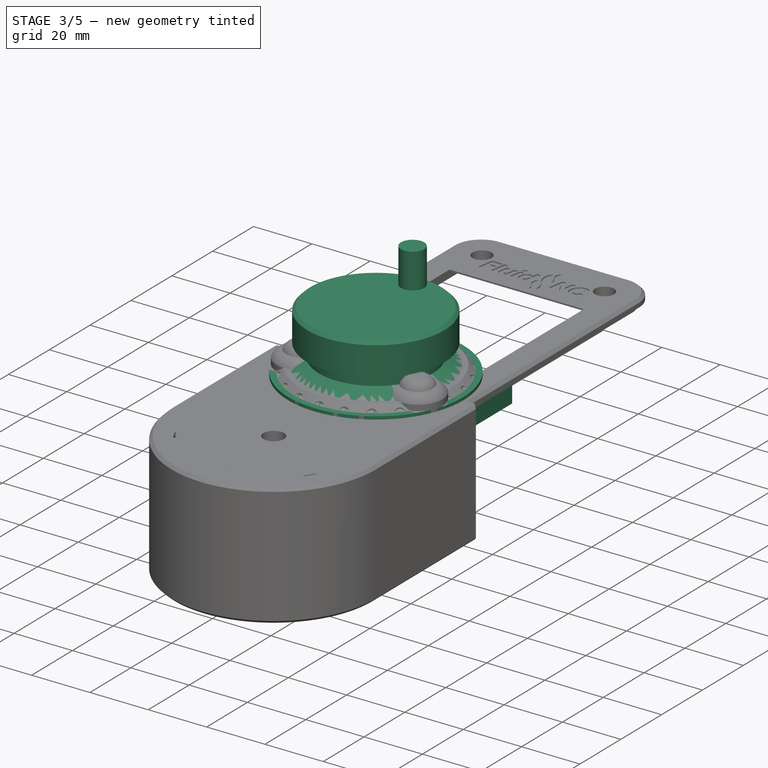
[diagram: stage 3 of 5 — iso view after this stage's code; geometry added in this stage tinted green]
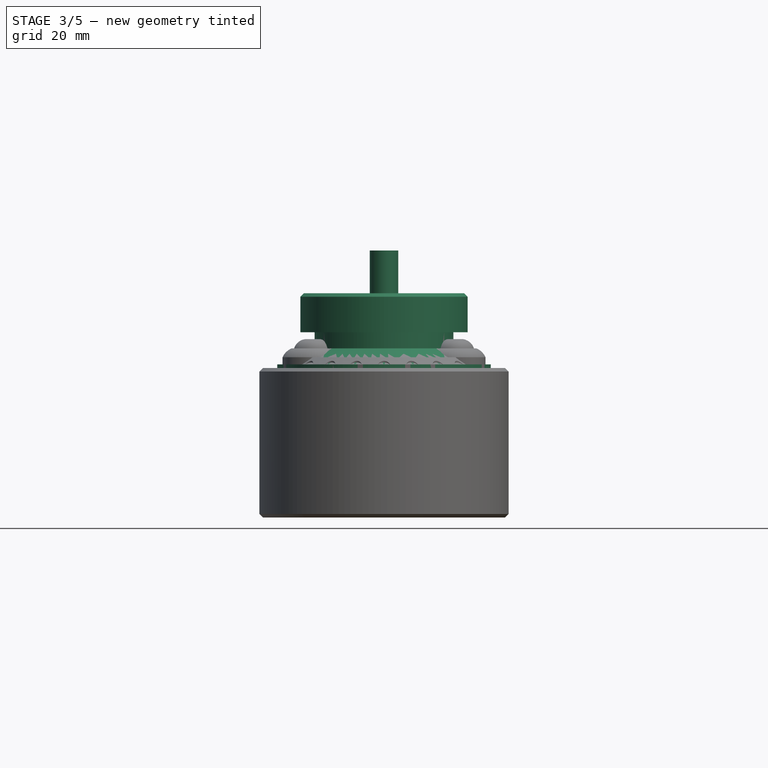
[diagram: stage 3 of 5 — front view after this stage's code; geometry added in this stage tinted green]
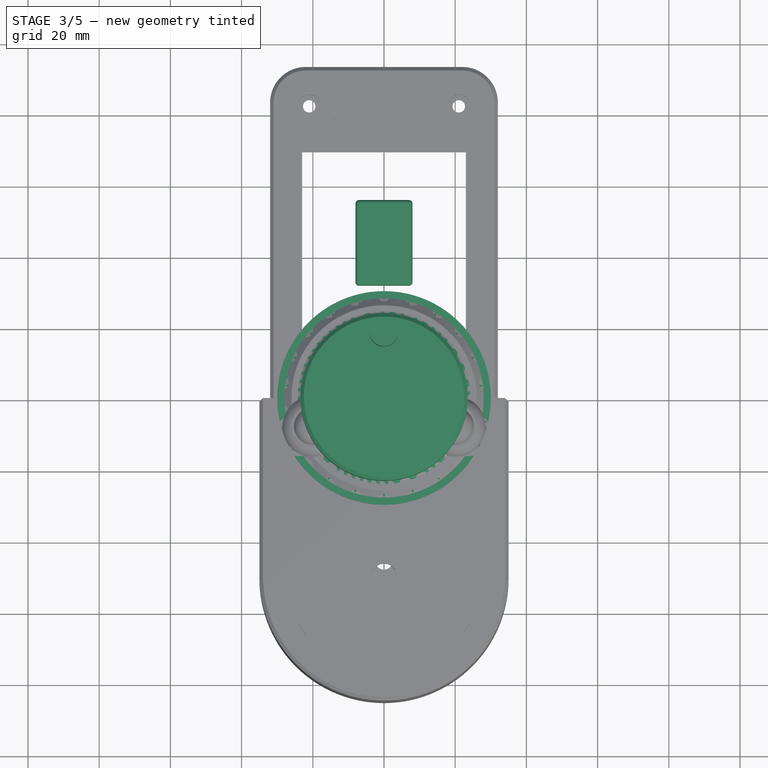
[diagram: stage 3 of 5 — top view after this stage's code; geometry added in this stage tinted green]
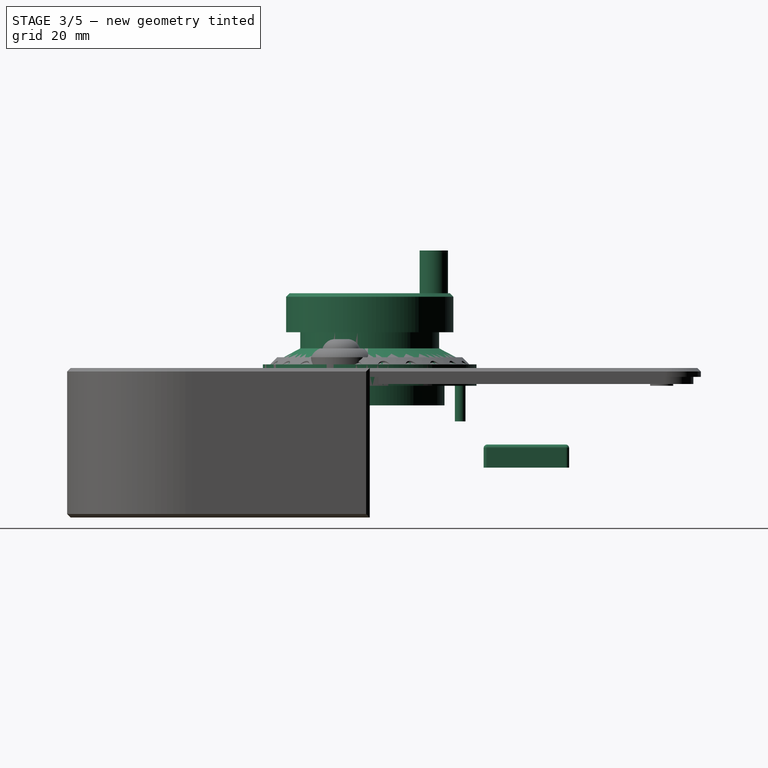
[diagram: stage 3 of 5 — right view after this stage's code; geometry added in this stage tinted green]
FEATURE [Sketcher::SketchObject] Sketch023
  ArcFitTolerance = 1e-06
  AttachmentSupport = -> [XY_Plane006]
  FullyConstrained = true
  MakeInternals = false
  MapMode = 5
  sketch-geometry (10):
    g0: LineSegment StartX=-7 StartY=6 StartZ=0 EndX=-7 EndY=-6 EndZ=0
    g1: LineSegment StartX=-6 StartY=-7 StartZ=0 EndX=6 EndY=-7 EndZ=0
    g2: LineSegment StartX=7 StartY=-6 StartZ=0 EndX=7 EndY=6 EndZ=0
    g3: LineSegment StartX=6 StartY=7 StartZ=0 EndX=-6 EndY=7 EndZ=0
    g4: ArcOfCircle CenterX=-6 CenterY=6 CenterZ=0 NormalX=0 NormalY=0 NormalZ=1 AngleXU=0 Radius=1 StartAngle=1.5708 EndAngle=3.14159
    g5: ArcOfCircle CenterX=-6 CenterY=-6 CenterZ=0 NormalX=0 NormalY=0 NormalZ=1 AngleXU=0 Radius=1 StartAngle=3.14159 EndAngle=4.71239
    g6: ArcOfCircle CenterX=6 CenterY=-6 CenterZ=0 NormalX=0 NormalY=0 NormalZ=1 AngleXU=0 Radius=1 StartAngle=4.71239 EndAngle=6.28319
    g7: ArcOfCircle CenterX=6 CenterY=6 CenterZ=0 NormalX=0 NormalY=0 NormalZ=1 AngleXU=0 Radius=1 StartAngle=-1.69e-14 EndAngle=1.5708
    g8: GeomPoint [constr] X=-7 Y=7 Z=0
    g9: GeomPoint [constr] X=7 Y=-7 Z=0
  constraints (22):
    c: Tangent(g0,g4) = -1.5708
    c: Tangent(g0,g5) = -1.5708
    c: Tangent(g1,g5) = -1.5708
    c: Tangent(g1,g6) = -1.5708
    c: Tangent(g2,g6) = -1.5708
    c: Tangent(g2,g7) = -1.5708
    c: Tangent(g3,g7) = -1.5708
    c: Tangent(g3,g4) = -1.5708
    c: Vertical(g0)
    c: Horizontal(g1)
    c: Horizontal(g3)
    c: Equal(g4,g5)
    c: Equal(g5,g6)
    c: PointOnObject(g8,g0)
    c: PointOnObject(g8,g3)
    c: PointOnObject(g9,g1)
    c: PointOnObject(g9,g2)
    c: Symmetric(g2,g2,g-1)
    c: Symmetric(g2,g0,g-2)
    c: Radius(g7) = 1
    c: DistanceX(g0,g2) = 14
    c: Equal(g2,g3)
FEATURE [PartDesign::Pad] Pad007
  Direction = (0,0,1)
  Length = 12
  Length2 = 10
  Profile = -> Sketch023
  ReferenceAxis = -> Sketch023 [N_Axis]
  Suppressed = false
  Type = 0
FEATURE [Sketcher::SketchObject] Sketch024
  ArcFitTolerance = 1e-06
  AttachmentSupport = -> [XY_Plane006]
  FullyConstrained = true
  MakeInternals = false
  MapMode = 5
  sketch-geometry (5):
    g0: LineSegment StartX=-5 StartY=-5 StartZ=0 EndX=5 EndY=-5 EndZ=0
    g1: LineSegment StartX=5 StartY=-5 StartZ=0 EndX=5 EndY=5 EndZ=0
    g2: LineSegment StartX=5 StartY=5 StartZ=0 EndX=-5 EndY=5 EndZ=0
    g3: LineSegment StartX=-5 StartY=5 StartZ=0 EndX=-5 EndY=-5 EndZ=0
    g4: GeomPoint [constr] X=0 Y=0 Z=0
  constraints (12):
    c: Coincident(g0,g1)
    c: Coincident(g1,g2)
    c: Coincident(g2,g3)
    c: Coincident(g3,g0)
    c: Horizontal(g0)
    c: Horizontal(g2)
    c: Vertical(g1)
    c: Vertical(g3)
    c: Symmetric(g2,g0,g4)
    c: Distance(g1,g3) = 10
    c: Distance(g0,g2) = 10
    c: Coincident(g4,g-1)
FEATURE [PartDesign::Pocket] Pocket014
  BaseFeature = -> Pad007
  Direction = (0,0,-1)
  Length = 10
  Length2 = 5
  Profile = -> Sketch024
  ReferenceAxis = -> Sketch024 [N_Axis]
  Reversed = true
  Suppressed = false
  Type = 0
FEATURE [PartDesign::Fillet] Fillet
  Base = -> Pocket014 [Face5]
  BaseFeature = -> Pocket014
  Radius = 1
  SupportTransform = false
  Suppressed = false
  UseAllEdges = false
FEATURE [Sketcher::SketchObject] Sketch025
  ArcFitTolerance = 1e-06
  AttachmentSupport = -> [YZ_Plane007]
  FullyConstrained = false
  MakeInternals = false
  MapMode = 5
  Placement = pos=(0,0,0) rot=(0.57735,0.57735,0.57735;2.0944rad)
  sketch-geometry (13):
    g0: LineSegment StartX=0 StartY=0 StartZ=0 EndX=0 EndY=-5.5 EndZ=0
    g1: LineSegment StartX=0 StartY=-5.5 StartZ=0 EndX=21 EndY=-5.5 EndZ=0
    g2: LineSegment StartX=21 StartY=-5.5 StartZ=0 EndX=21 EndY=0 EndZ=0
    g3: LineSegment StartX=21 StartY=0 StartZ=0 EndX=30 EndY=0 EndZ=0
    g4: LineSegment StartX=30 StartY=0 StartZ=0 EndX=30 EndY=6 EndZ=0
    g5: LineSegment StartX=30 StartY=6 StartZ=0 EndX=28 EndY=6 EndZ=0
    g6: LineSegment StartX=28 StartY=6 StartZ=0 EndX=19.5 EndY=10.5153 EndZ=0
    g7: LineSegment StartX=19.5 StartY=10.5153 StartZ=0 EndX=19.5 EndY=15.0249 EndZ=0
    g8: LineSegment StartX=19.5 StartY=15.0249 StartZ=0 EndX=23.5 EndY=15.0249 EndZ=0
    g9: LineSegment StartX=23.5 StartY=15.0249 StartZ=0 EndX=23.5 EndY=25 EndZ=0
    g10: LineSegment StartX=23.5 StartY=25 StartZ=0 EndX=22.5 EndY=26 EndZ=0
    g11: LineSegment StartX=22.5 StartY=26 StartZ=0 EndX=0 EndY=26 EndZ=0
    g12: LineSegment StartX=0 StartY=26 StartZ=0 EndX=0 EndY=0 EndZ=0
  constraints (36):
    c: Coincident(g-1,g0)
    c: PointOnObject(g0,g-2)
    c: Coincident(g0,g1)
    c: Horizontal(g1)
    c: Coincident(g1,g2)
    c: Vertical(g2)
    c: Coincident(g2,g3)
    c: PointOnObject(g3,g-1)
    c: Coincident(g3,g4)
    c: Vertical(g4)
    c: Coincident(g4,g5)
    c: Horizontal(g5)
    c: Coincident(g5,g6)
    c: Coincident(g6,g7)
    c: Vertical(g7)
    c: Coincident(g7,g8)
    c: Horizontal(g8)
    c: Coincident(g8,g9)
    c: Vertical(g9)
    c: Coincident(g9,g10)
    c: Coincident(g10,g11)
    c: PointOnObject(g11,g-2)
    c: Coincident(g11,g12)
    c: Coincident(g12,g0)
    c: Horizontal(g3)
    c: DistanceY(g2,g2) = 5.5
    c: DistanceY(g4,g4) = 6
    c: DistanceX(g-1,g9) = 23.5
    c: Horizontal(g11)
    c: DistanceY(g3,g10) = 26
    c: DistanceX(g10,g10) = 1
    c: DistanceY(g10,g10) = 1
    c: Distance(g5,g5) = 2
    c: DistanceX(g-1,g3) = 30
    c: DistanceX(g-1,g1) = 21
    c: DistanceX(g7,g10) = 3
FEATURE [PartDesign::Revolution] Revolution
  Angle = 360
  Angle2 = 60
  Axis = (0,0,1)
  Base = (0,0,0)
  Placement = pos=(0,0,0) rot=(1,1,1;2.0944rad)
  Profile = -> Sketch025
  ReferenceAxis = -> Sketch025 [V_Axis]
  Reversed = true
  Suppressed = false
  Type = 0
FEATURE [Sketcher::SketchObject] Sketch026
  ArcFitTolerance = 1e-06
  AttachmentSupport = -> [XY_Plane007]
  FullyConstrained = true
  MakeInternals = false
  MapMode = 5
  sketch-geometry (7):
    g0: LineSegment [constr] StartX=0 StartY=25.4 StartZ=0 EndX=-21.997 EndY=-12.7 EndZ=0
    g1: LineSegment [constr] StartX=-21.997 StartY=-12.7 StartZ=0 EndX=21.997 EndY=-12.7 EndZ=0
    g2: LineSegment [constr] StartX=21.997 StartY=-12.7 StartZ=0 EndX=0 EndY=25.4 EndZ=0
    g3: Circle [constr] CenterX=0 CenterY=0 CenterZ=0 NormalX=0 NormalY=0 NormalZ=1 AngleXU=0 Radius=25.4
    g4: Circle CenterX=0 CenterY=25.4 CenterZ=0 NormalX=0 NormalY=0 NormalZ=1 AngleXU=0 Radius=1.5
    g5: Circle CenterX=-21.997 CenterY=-12.7 CenterZ=0 NormalX=0 NormalY=0 NormalZ=1 AngleXU=0 Radius=1.5
    g6: Circle CenterX=21.997 CenterY=-12.7 CenterZ=0 NormalX=0 NormalY=0 NormalZ=1 AngleXU=0 Radius=1.5
  constraints (17):
    c: Coincident(g0,g1)
    c: Coincident(g1,g2)
    c: Coincident(g2,g0)
    c: Equal(g0,g1)
    c: Equal(g0,g2)
    c: PointOnObject(g0,g3)
    c: PointOnObject(g1,g3)
    c: PointOnObject(g2,g3)
    c: Coincident(g3,g-1)
    c: PointOnObject(g2,g-2)
    c: Diameter(g3) = 50.8
    c: Coincident(g4,g0)
    c: Coincident(g5,g0)
    c: Coincident(g6,g1)
    c: Equal(g6,g5)
    c: Equal(g5,g4)
    c: Diameter(g4) = 3
FEATURE [PartDesign::Pad] Pad008
  BaseFeature = -> Revolution
  Direction = (0,0,1)
  Length = 10
  Length2 = 10
  Placement = pos=(0,0,0) rot=(1,1,1;2.0944rad)
  Profile = -> Sketch026
  ReferenceAxis = -> Sketch026 [N_Axis]
  Reversed = true
  Suppressed = false
  Type = 0
FEATURE [Sketcher::SketchObject] Sketch027
  ArcFitTolerance = 1e-06
  AttachmentOffset = pos=(0,0,26) rot=(0,0,1;0rad)
  AttachmentSupport = -> [XY_Plane007]
  FullyConstrained = true
  MakeInternals = false
  MapMode = 5
  Placement = pos=(0,0,26) rot=(0,0,1;0rad)
  sketch-geometry (1):
    g0: Circle CenterX=0 CenterY=18 CenterZ=0 NormalX=0 NormalY=0 NormalZ=1 AngleXU=0 Radius=4
  constraints (3):
    c: Diameter(g0) = 8
    c: PointOnObject(g0,g-2)
    c: DistanceY(g-1,g0) = 18
FEATURE [PartDesign::Pad] Pad009
  BaseFeature = -> Pad008
  Direction = (0,0,1)
  Length = 12
  Length2 = 10
  Placement = pos=(0,0,0) rot=(1,1,1;2.0944rad)
  Profile = -> Sketch027
  ReferenceAxis = -> Sketch027 [N_Axis]
  Suppressed = false
  Type = 0
FEATURE [PartDesign::Chamfer] Chamfer002
  Angle = 45
  Base = -> Groove002 [Edge4,Edge3,Edge5,Edge8]
  BaseFeature = -> Groove002
  ChamferType = 0
  FlipDirection = false
  Size = 1
  Size2 = 1
  SupportTransform = false
  Suppressed = false
  UseAllEdges = false
FEATURE [Part::FeaturePython] Clone006  label="Magnet Holder 004"  # Draft clone (typed FeaturePython)
  AttacherType = Attacher::AttachEngine3D
  Fuse = false
  Objects = -> [Body006]
  Placement = pos=(23,-40,-23) rot=(0,0,1;0rad)
  Scale = (1,1,1)
FEATURE [Sketcher::SketchObject] Sketch038
  ArcFitTolerance = 1e-06
  AttachmentSupport = -> [XY_Plane010]
  FullyConstrained = true
  MakeInternals = false
  MapMode = 5
  sketch-geometry (8):
    g0: LineSegment StartX=-8 StartY=8 StartZ=0 EndX=-8 EndY=-16 EndZ=0
    g1: LineSegment StartX=-8 StartY=-16 StartZ=0 EndX=8 EndY=-16 EndZ=0
    g2: LineSegment StartX=8 StartY=-16 StartZ=0 EndX=8 EndY=8 EndZ=0
    g3: LineSegment StartX=8 StartY=8 StartZ=0 EndX=-8 EndY=8 EndZ=0
    g4: LineSegment StartX=-6 StartY=6 StartZ=0 EndX=-6 EndY=-14 EndZ=0
    g5: LineSegment StartX=-6 StartY=-14 StartZ=0 EndX=6 EndY=-14 EndZ=0
    g6: LineSegment StartX=6 StartY=-14 StartZ=0 EndX=6 EndY=6 EndZ=0
    g7: LineSegment StartX=6 StartY=6 StartZ=0 EndX=-6 EndY=6 EndZ=0
  constraints (23):
    c: Coincident(g0,g1)
    c: Coincident(g1,g2)
    c: Coincident(g2,g3)
    c: Coincident(g3,g0)
    c: Vertical(g0)
    c: Vertical(g2)
    c: Horizontal(g1)
    c: Symmetric(g2,g0,g-2)
    c: DistanceX(g0,g-1) = 8
    c: DistanceY(g-1,g0) = 8
    c: DistanceY(g0,g-1) = 16
    c: Coincident(g4,g5)
    c: Coincident(g5,g6)
    c: Coincident(g6,g7)
    c: Coincident(g7,g4)
    c: Vertical(g4)
    c: Vertical(g6)
    c: Horizontal(g5)
    c: Horizontal(g7)
    c: DistanceX(g0,g4) = 2
    c: DistanceY(g4,g0) = 2
    c: DistanceX(g6,g2) = 2
    c: DistanceY(g1,g5) = 2
FEATURE [Sketcher::SketchObject] Sketch039
  ArcFitTolerance = 1e-06
  AttachmentOffset = pos=(0,0,5) rot=(0,0,1;0rad)
  AttachmentSupport = -> [XY_Plane010]
  FullyConstrained = true
  MakeInternals = false
  MapMode = 5
  Placement = pos=(0,0,5) rot=(0,0,1;0rad)
  sketch-geometry (4):
    g0: LineSegment StartX=-8 StartY=8 StartZ=0 EndX=-8 EndY=-16 EndZ=0
    g1: LineSegment StartX=-8 StartY=-16 StartZ=0 EndX=8 EndY=-16 EndZ=0
    g2: LineSegment StartX=8 StartY=-16 StartZ=0 EndX=8 EndY=8 EndZ=0
    g3: LineSegment StartX=8 StartY=8 StartZ=0 EndX=-8 EndY=8 EndZ=0
  constraints (11):
    c: Coincident(g0,g1)
    c: Coincident(g1,g2)
    c: Coincident(g2,g3)
    c: Coincident(g3,g0)
    c: Vertical(g0)
    c: Vertical(g2)
    c: Horizontal(g1)
    c: Symmetric(g2,g0,g-2)
    c: DistanceX(g0,g-1) = 8
    c: DistanceY(g-1,g0) = 8
    c: DistanceY(g0,g-1) = 16
FEATURE [PartDesign::Pad] Pad012
  Direction = (0,0,1)
  Length = 5
  Length2 = 10
  Profile = -> Sketch038
  ReferenceAxis = -> Sketch038 [N_Axis]
  Suppressed = false
  Type = 0
FEATURE [PartDesign::Pad] Pad013
  BaseFeature = -> Pad012
  Direction = (0,0,1)
  Length = 1.5
  Length2 = 10
  Profile = -> Sketch039
  ReferenceAxis = -> Sketch039 [N_Axis]
  Suppressed = false
  Type = 0
FEATURE [PartDesign::Fillet] Fillet001
  Base = -> Pad013 [Face13,Edge2,Edge8,Edge5,Edge1]
  BaseFeature = -> Pad013
  Radius = 1
  SupportTransform = false
  Suppressed = false
  UseAllEdges = false
FEATURE [PartDesign::Body] Body010  label="Hook Cover 001"
  AllowCompound = false
  Group = -> [Sketch038,Sketch039,Pad012,Pad013,Fillet001]
  Origin = -> Origin010
  Placement = pos=(0,-25,-23) rot=(0,0,1;0rad)
  Tip = -> Fillet001
FEATURE [Part::FeaturePython] Clone007  label="Hook Cover 002"  # Draft clone (typed FeaturePython)
  AttacherType = Attacher::AttachEngine3D
  Fuse = false
  Objects = -> [Body010]
  Placement = pos=(-5.4e-15,40,-23) rot=(0,0,-1;3.14159rad)
  Scale = (1,1,1)
FEATURE [Part::Compound] Compound  label="Hook Cover"
  Links = -> [Body010,Clone007]
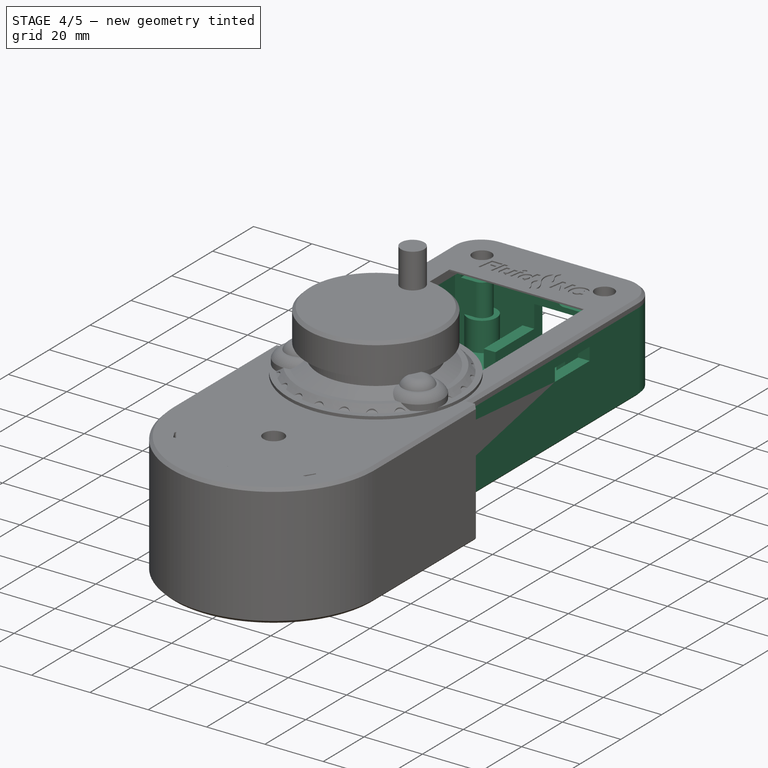
[diagram: stage 4 of 5 — iso view after this stage's code; geometry added in this stage tinted green]
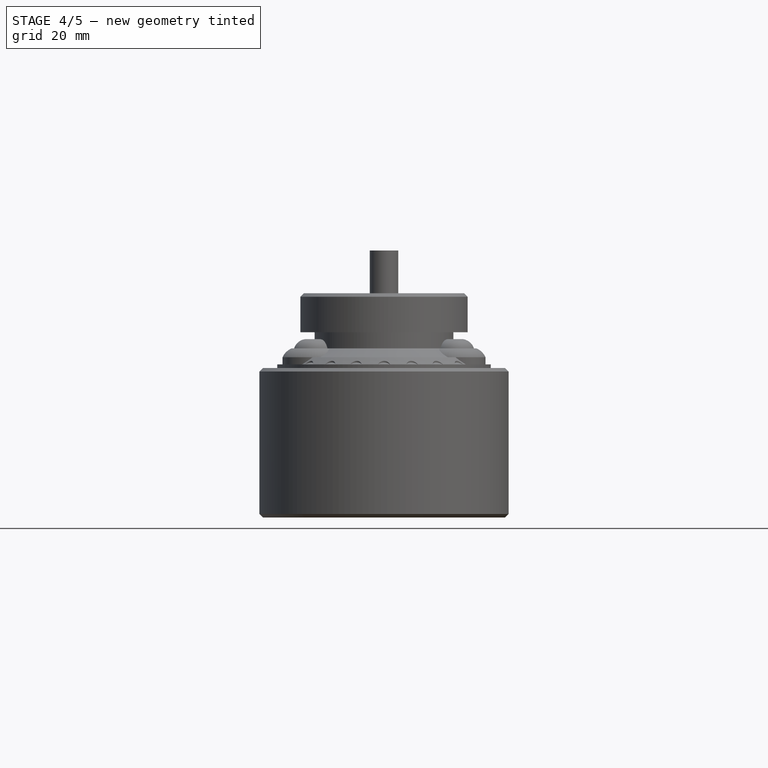
[diagram: stage 4 of 5 — front view after this stage's code; geometry added in this stage tinted green]
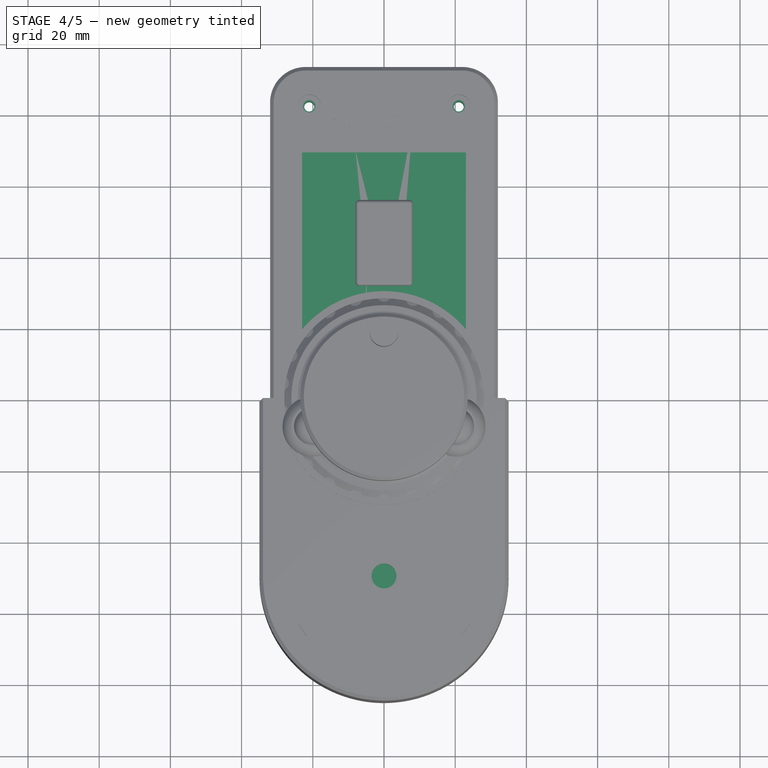
[diagram: stage 4 of 5 — top view after this stage's code; geometry added in this stage tinted green]
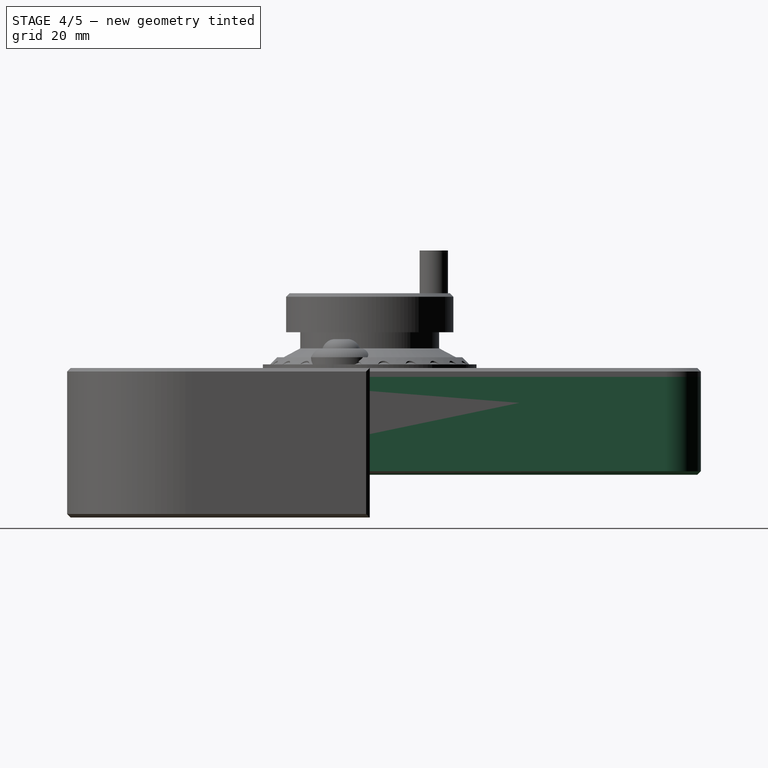
[diagram: stage 4 of 5 — right view after this stage's code; geometry added in this stage tinted green]
FEATURE [Sketcher::SketchObject] Sketch
  ArcFitTolerance = 1e-06
  AttachmentSupport = -> [XY_Plane]
  FullyConstrained = true
  MakeInternals = false
  MapMode = 5
  sketch-geometry (6):
    g0: ArcOfCircle CenterX=-22 CenterY=83 CenterZ=0 NormalX=0 NormalY=0 NormalZ=1 AngleXU=0 Radius=10 StartAngle=1.5708 EndAngle=3.14159
    g1: ArcOfCircle CenterX=22 CenterY=83 CenterZ=0 NormalX=0 NormalY=0 NormalZ=1 AngleXU=0 Radius=10 StartAngle=0 EndAngle=1.5708
    g2: ArcOfCircle CenterX=0 CenterY=-50 CenterZ=0 NormalX=0 NormalY=0 NormalZ=1 AngleXU=0 Radius=32 StartAngle=3.14159 EndAngle=6.28319
    g3: LineSegment StartX=-32 StartY=-50 StartZ=0 EndX=-32 EndY=83 EndZ=0
    g4: LineSegment StartX=-22 StartY=93 StartZ=0 EndX=22 EndY=93 EndZ=0
    g5: LineSegment StartX=32 StartY=83 StartZ=0 EndX=32 EndY=-50 EndZ=0
  constraints (14):
    c: PointOnObject(g2,g-2)
    c: Vertical(g3)
    c: Horizontal(g4)
    c: Tangent(g5,g2) = 1.5708
    c: Tangent(g3,g2) = 1.5708
    c: Tangent(g3,g0) = 1.5708
    c: Tangent(g4,g0) = 1.5708
    c: Tangent(g4,g1) = 1.5708
    c: Tangent(g5,g1) = 1.5708
    c: Symmetric(g1,g0,g-2)
    c: Radius(g2) = 32
    c: DistanceY(g2,g-1) = 50
    c: Radius(g1) = 10
    c: DistanceY(g-1,g1) = 93
FEATURE [Sketcher::SketchObject] Sketch001
  ArcFitTolerance = 1e-06
  AttachmentSupport = -> [XY_Plane]
  FullyConstrained = true
  MakeInternals = false
  MapMode = 5
  sketch-geometry (6):
    g0: ArcOfCircle CenterX=0 CenterY=-50 CenterZ=0 NormalX=0 NormalY=0 NormalZ=1 AngleXU=0 Radius=30 StartAngle=3.14159 EndAngle=6.28319
    g1: LineSegment StartX=-30 StartY=-50 StartZ=0 EndX=-30 EndY=83 EndZ=0
    g2: LineSegment StartX=-22 StartY=91 StartZ=0 EndX=22 EndY=91 EndZ=0
    g3: LineSegment StartX=30 StartY=83 StartZ=0 EndX=30 EndY=-50 EndZ=0
    g4: ArcOfCircle CenterX=-22 CenterY=83 CenterZ=0 NormalX=0 NormalY=0 NormalZ=1 AngleXU=0 Radius=8 StartAngle=1.5708 EndAngle=3.14159
    g5: ArcOfCircle CenterX=22 CenterY=83 CenterZ=0 NormalX=0 NormalY=0 NormalZ=1 AngleXU=0 Radius=8 StartAngle=5e-16 EndAngle=1.5708
  constraints (16):
    c: PointOnObject(g0,g-2)
    c: Tangent(g0,g1) = 1.5708
    c: Horizontal(g2)
    c: Coincident(g3,g0)
    c: Vertical(g3)
    c: Tangent(g4,g2) = 1.5708
    c: Tangent(g4,g1) = 1.5708
    c: Tangent(g5,g2) = 1.5708
    c: Tangent(g5,g3) = 1.5708
    c: DistanceY(g-1,g2) = 91
    c: Radius(g0) = 30
    c: Horizontal(g0,g0)
    c: Horizontal(g0,g0)
    c: DistanceY(g0,g-1) = 50
    c: Radius(g5) = 8
    c: Equal(g5,g4)
FEATURE [Sketcher::SketchObject] Sketch002
  ArcFitTolerance = 1e-06
  AttachmentSupport = -> [XY_Plane]
  FullyConstrained = true
  MakeInternals = false
  MapMode = 5
  sketch-geometry (39):
    g0: ArcOfCircle [constr] CenterX=0 CenterY=-50 CenterZ=0 NormalX=0 NormalY=0 NormalZ=1 AngleXU=0 Radius=28 StartAngle=3.14159 EndAngle=6.28319
    g1: ArcOfCircle [constr] CenterX=-22 CenterY=83 CenterZ=0 NormalX=0 NormalY=0 NormalZ=1 AngleXU=0 Radius=6 StartAngle=1.5708 EndAngle=3.14159
    g2: ArcOfCircle [constr] CenterX=22 CenterY=83 CenterZ=0 NormalX=0 NormalY=0 NormalZ=1 AngleXU=0 Radius=6 StartAngle=0 EndAngle=1.5708
    g3: LineSegment StartX=-22 StartY=89 StartZ=0 EndX=22 EndY=89 EndZ=0
    g4: LineSegment [constr] StartX=28 StartY=83 StartZ=0 EndX=28 EndY=-50 EndZ=0
    g5: LineSegment [constr] StartX=-28 StartY=-50 StartZ=0 EndX=-28 EndY=83 EndZ=0
    g6: Circle CenterX=-21 CenterY=4 CenterZ=0 NormalX=0 NormalY=0 NormalZ=1 AngleXU=0 Radius=1.4
    g7: Circle CenterX=21 CenterY=4 CenterZ=0 NormalX=0 NormalY=0 NormalZ=1 AngleXU=0 Radius=1.4
    g8: Circle CenterX=-21 CenterY=82 CenterZ=0 NormalX=0 NormalY=0 NormalZ=1 AngleXU=0 Radius=1.4
    g9: Circle CenterX=21 CenterY=82 CenterZ=0 NormalX=0 NormalY=0 NormalZ=1 AngleXU=0 Radius=1.4
    g10: ArcOfCircle CenterX=-21 CenterY=4 CenterZ=0 NormalX=0 NormalY=0 NormalZ=1 AngleXU=0 Radius=3.25 StartAngle=4.71239 EndAngle=7.85398
    g11: ArcOfCircle CenterX=21 CenterY=4 CenterZ=0 NormalX=0 NormalY=0 NormalZ=1 AngleXU=0 Radius=3.25 StartAngle=1.5708 EndAngle=4.71239
    g12: ArcOfCircle CenterX=-21 CenterY=82 CenterZ=0 NormalX=0 NormalY=0 NormalZ=1 AngleXU=0 Radius=3.25 StartAngle=4.71239 EndAngle=7.85398
    g13: ArcOfCircle CenterX=21 CenterY=82 CenterZ=0 NormalX=0 NormalY=0 NormalZ=1 AngleXU=0 Radius=3.25 StartAngle=1.5708 EndAngle=4.71239
    g14: LineSegment StartX=21 StartY=78.75 StartZ=0 EndX=28 EndY=78.75 EndZ=0
    g15: LineSegment StartX=28 StartY=78.75 StartZ=0 EndX=28 EndY=7.25 EndZ=0
    g16: LineSegment StartX=28 StartY=7.25 StartZ=0 EndX=21 EndY=7.25 EndZ=0
    g17: LineSegment StartX=-21 StartY=7.25 StartZ=0 EndX=-28 EndY=7.25 EndZ=0
    g18: LineSegment StartX=-28 StartY=7.25 StartZ=0 EndX=-28 EndY=78.75 EndZ=0
    g19: LineSegment StartX=-28 StartY=78.75 StartZ=0 EndX=-21 EndY=78.75 EndZ=0
    g20: LineSegment StartX=-21 StartY=85.25 StartZ=0 EndX=-27.5621 EndY=85.25 EndZ=0
    g21: ArcOfCircle CenterX=-22 CenterY=83 CenterZ=0 NormalX=0 NormalY=0 NormalZ=1 AngleXU=0 Radius=6 StartAngle=1.5708 EndAngle=2.7572
    g22: LineSegment StartX=-21 StartY=0.75 StartZ=0 EndX=-28 EndY=0.75 EndZ=0
    g23: LineSegment StartX=-28 StartY=0.75 StartZ=0 EndX=-28 EndY=-50 EndZ=0
    g24: LineSegment StartX=21 StartY=0.75 StartZ=0 EndX=28 EndY=0.75 EndZ=0
    g25: LineSegment StartX=28 StartY=0.75 StartZ=0 EndX=28 EndY=-50 EndZ=0
    g26: LineSegment StartX=21 StartY=85.25 StartZ=0 EndX=27.5621 EndY=85.25 EndZ=0
    g27: ArcOfCircle CenterX=22 CenterY=83 CenterZ=0 NormalX=0 NormalY=0 NormalZ=1 AngleXU=0 Radius=6 StartAngle=0.384397 EndAngle=1.5708
    g28: ArcOfCircle CenterX=-21 CenterY=-64 CenterZ=0 NormalX=0 NormalY=0 NormalZ=1 AngleXU=0 Radius=3.25 StartAngle=4.71239 EndAngle=7.85398
    g29: ArcOfCircle CenterX=21 CenterY=-64 CenterZ=0 NormalX=0 NormalY=0 NormalZ=1 AngleXU=0 Radius=3.25 StartAngle=1.5708 EndAngle=4.71239
    g30: LineSegment StartX=-21 StartY=-60.75 StartZ=0 EndX=-25.8542 EndY=-60.75 EndZ=0
    g31: LineSegment StartX=-21 StartY=-67.25 StartZ=0 EndX=-22.0553 EndY=-67.25 EndZ=0
    g32: LineSegment StartX=21 StartY=-67.25 StartZ=0 EndX=22.0553 EndY=-67.25 EndZ=0
    g33: LineSegment StartX=21 StartY=-60.75 StartZ=0 EndX=25.8542 EndY=-60.75 EndZ=0
    g34: Circle CenterX=-21 CenterY=-64 CenterZ=0 NormalX=0 NormalY=0 NormalZ=1 AngleXU=0 Radius=1.75
    g35: Circle CenterX=21 CenterY=-64 CenterZ=0 NormalX=0 NormalY=0 NormalZ=1 AngleXU=0 Radius=1.75
    g36: ArcOfCircle CenterX=0 CenterY=-50 CenterZ=0 NormalX=0 NormalY=0 NormalZ=1 AngleXU=0 Radius=28 StartAngle=3.14159 EndAngle=3.53564
    g37: ArcOfCircle CenterX=0 CenterY=-50 CenterZ=0 NormalX=0 NormalY=0 NormalZ=1 AngleXU=0 Radius=28 StartAngle=5.88914 EndAngle=6.28319
    g38: ArcOfCircle CenterX=0 CenterY=-50 CenterZ=0 NormalX=0 NormalY=0 NormalZ=1 AngleXU=0 Radius=28 StartAngle=3.80534 EndAngle=5.61944
  constraints (103):
    c: PointOnObject(g0,g-2)
    c: Horizontal(g3)
    c: Vertical(g4)
    c: Vertical(g5)
    c: DistanceY(g-1,g1) = 89
    c: Radius(g1) = 6
    c: Tangent(g5,g1) = 1.5708
    c: Tangent(g3,g1) = 1.5708
    c: Tangent(g3,g2) = 1.5708
    c: Tangent(g4,g2) = 1.5708
    c: Tangent(g5,g0) = 1.5708
    c: Tangent(g4,g0) = 1.5708
    c: Radius(g0) = 28
    c: DistanceY(g0,g-1) = 50
    c: Equal(g2,g1)
    c: Symmetric(g9,g8,g-2)
    c: Vertical(g7,g9)
    c: Horizontal(g7,g6)
    c: Vertical(g6,g8)
    c: Diameter(g8) = 2.8
    c: DistanceX(g8,g-1) = 21
    c: DistanceY(g-1,g8) = 82
    c: Equal(g9,g8)
    c: Equal(g8,g6)
    c: Equal(g6,g7)
    c: DistanceY(g-1,g6) = 4
    c: Coincident(g10,g6)
    c: Coincident(g11,g7)
    c: Coincident(g12,g8)
    c: Coincident(g13,g9)
    c: Tangent(g13,g14) = -1.5708
    c: Coincident(g14,g15)
    c: PointOnObject(g15,g4)
    c: Vertical(g15)
    c: Coincident(g15,g16)
    c: Tangent(g10,g17) = -1.5708
    c: Coincident(g17,g18)
    c: PointOnObject(g18,g5)
    c: Vertical(g18)
    c: Coincident(g18,g19)
    c: Coincident(g20,g12)
    c: Horizontal(g20)
    c: Coincident(g21,g1)
    c: Coincident(g21,g1)
    c: Coincident(g21,g20)
    c: Tangent(g10,g22) = 1.5708
    c: Coincident(g22,g23)
    c: Coincident(g23,g0)
    c: Vertical(g23)
    c: Tangent(g11,g24) = -1.5708
    c: Coincident(g24,g25)
    c: Coincident(g25,g0)
    c: Vertical(g25)
    c: Tangent(g13,g26) = 1.5708
    c: Coincident(g27,g2)
    c: Coincident(g27,g2)
    c: Coincident(g27,g26)
    c: Radius(g13) = 3.25
    c: Vertical(g13,g9)
    c: Vertical(g9,g13)
    c: Equal(g12,g13)
    c: Vertical(g12,g8)
    c: Vertical(g8,g12)
    c: Tangent(g19,g12) = -1.5708
    c: Equal(g10,g11)
    c: Equal(g11,g12)
    c: Vertical(g10,g6)
    c: Vertical(g6,g10)
    c: Vertical(g11,g7)
    c: Vertical(g7,g11)
    c: Tangent(g16,g11) = -1.5708
    c: Equal(g10,g28)
    c: Equal(g28,g29)
    c: Vertical(g28,g28)
    c: Vertical(g28,g28)
    c: Vertical(g28,g10)
    c: Vertical(g29,g29)
    c: Vertical(g29,g29)
    c: Vertical(g29,g11)
    c: Horizontal(g29,g28)
    c: DistanceY(g28,g-1) = 64
    c: Coincident(g30,g28)
    c: Horizontal(g30)
    c: Coincident(g31,g28)
    c: Horizontal(g31)
    c: Coincident(g32,g29)
    c: Coincident(g33,g29)
    c: Horizontal(g33)
    c: Coincident(g34,g28)
    c: Coincident(g35,g29)
    c: Equal(g35,g34)
    c: Coincident(g36,g0)
    c: Coincident(g36,g0)
    c: Coincident(g36,g30)
    c: Coincident(g37,g0)
    c: Coincident(g37,g0)
    c: Coincident(g37,g33)
    c: Coincident(g38,g0)
    c: Coincident(g38,g32)
    c: Coincident(g38,g31)
    c: Equal(g38,g0)
    c: Horizontal(g32)
    c: Diameter(g35) = 3.5
FEATURE [Sketcher::SketchObject] Sketch003
  ArcFitTolerance = 1e-06
  AttachmentSupport = -> [XY_Plane]
  FullyConstrained = true
  MakeInternals = false
  MapMode = 5
  sketch-geometry (8):
    g0: ArcOfCircle CenterX=0 CenterY=50 CenterZ=0 NormalX=0 NormalY=0 NormalZ=1 AngleXU=0 Radius=3 StartAngle=0 EndAngle=3.14159
    g1: ArcOfCircle CenterX=0 CenterY=40 CenterZ=0 NormalX=0 NormalY=0 NormalZ=1 AngleXU=0 Radius=5 StartAngle=2.2143 EndAngle=7.21048
    g2: ArcOfCircle CenterX=0 CenterY=-35 CenterZ=0 NormalX=0 NormalY=0 NormalZ=1 AngleXU=0 Radius=3 StartAngle=3.14159 EndAngle=6.28319
    g3: ArcOfCircle CenterX=0 CenterY=-25 CenterZ=0 NormalX=0 NormalY=0 NormalZ=1 AngleXU=0 Radius=5 StartAngle=5.35589 EndAngle=10.3521
    g4: LineSegment StartX=3 StartY=50 StartZ=0 EndX=3 EndY=44 EndZ=0
    g5: LineSegment StartX=-3 StartY=50 StartZ=0 EndX=-3 EndY=44 EndZ=0
    g6: LineSegment StartX=3 StartY=-35 StartZ=0 EndX=3 EndY=-29 EndZ=0
    g7: LineSegment StartX=-3 StartY=-35 StartZ=0 EndX=-3 EndY=-29 EndZ=0
  constraints (24):
    c: Radius(g0) = 3
    c: PointOnObject(g2,g-2)
    c: Radius(g3) = 5
    c: PointOnObject(g3,g-2)
    c: Equal(g3,g1)
    c: Coincident(g4,g1)
    c: Vertical(g4)
    c: Coincident(g5,g1)
    c: Vertical(g5)
    c: Coincident(g6,g3)
    c: Vertical(g6)
    c: Coincident(g7,g3)
    c: DistanceY(g3,g-1) = 25
    c: DistanceY(g2,g3) = 10
    c: Tangent(g6,g2) = -1.5708
    c: Tangent(g7,g2) = 1.5708
    c: Equal(g2,g0)
    c: Vertical(g7)
    c: PointOnObject(g0,g-2)
    c: PointOnObject(g1,g-2)
    c: DistanceY(g1,g0) = 10
    c: DistanceY(g-1,g1) = 40
    c: Tangent(g4,g0) = 1.5708
    c: Tangent(g5,g0) = -1.5708
FEATURE [Sketcher::SketchObject] Sketch004
  ArcFitTolerance = 1e-06
  AttachmentSupport = -> [XZ_Plane]
  FullyConstrained = true
  MakeInternals = false
  MapMode = 5
  Placement = pos=(0,0,0) rot=(1,0,0;1.5708rad)
  sketch-geometry (4):
    g0: LineSegment StartX=-26 StartY=0 StartZ=0 EndX=-26 EndY=-2 EndZ=0
    g1: LineSegment StartX=-26 StartY=-2 StartZ=0 EndX=26 EndY=-2 EndZ=0
    g2: LineSegment StartX=26 StartY=-2 StartZ=0 EndX=26 EndY=0 EndZ=0
    g3: LineSegment StartX=26 StartY=0 StartZ=0 EndX=-26 EndY=0 EndZ=0
  constraints (11):
    c: Coincident(g0,g1)
    c: Coincident(g1,g2)
    c: Coincident(g2,g3)
    c: Coincident(g3,g0)
    c: Vertical(g0)
    c: Vertical(g2)
    c: Horizontal(g3)
    c: PointOnObject(g0,g-1)
    c: DistanceY(g2,g2) = 2
    c: DistanceX(g3,g3) = 52
    c: Symmetric(g1,g0,g-2)
FEATURE [Sketcher::SketchObject] Sketch005
  ArcFitTolerance = 1e-06
  AttachmentOffset = pos=(0,0,32) rot=(0,0,1;0rad)
  AttachmentSupport = -> [YZ_Plane]
  FullyConstrained = true
  MakeInternals = false
  MapMode = 5
  Placement = pos=(32,0,0) rot=(0.57735,0.57735,0.57735;2.0944rad)
  sketch-geometry (12):
    g0: LineSegment StartX=42 StartY=-0.4 StartZ=0 EndX=42 EndY=-4.8 EndZ=0
    g1: LineSegment StartX=42 StartY=-4.8 StartZ=0 EndX=59 EndY=-4.8 EndZ=0
    g2: LineSegment StartX=59 StartY=-4.8 StartZ=0 EndX=59 EndY=-0.4 EndZ=0
    g3: LineSegment StartX=59 StartY=-0.4 StartZ=0 EndX=42 EndY=-0.4 EndZ=0
    g4: LineSegment [constr] StartX=43 StartY=-1.6 StartZ=0 EndX=43 EndY=-3.6 EndZ=0
    g5: LineSegment [constr] StartX=43 StartY=-3.6 StartZ=0 EndX=58 EndY=-3.6 EndZ=0
    g6: LineSegment [constr] StartX=58 StartY=-3.6 StartZ=0 EndX=58 EndY=-1.6 EndZ=0
    g7: LineSegment [constr] StartX=58 StartY=-1.6 StartZ=0 EndX=43 EndY=-1.6 EndZ=0
    g8: LineSegment [constr] StartX=43 StartY=-1.6 StartZ=0 EndX=42 EndY=-1.6 EndZ=0
    g9: LineSegment [constr] StartX=43 StartY=-1.6 StartZ=0 EndX=43 EndY=-0.4 EndZ=0
    g10: LineSegment [constr] StartX=43 StartY=-3.6 StartZ=0 EndX=43 EndY=-4.8 EndZ=0
    g11: LineSegment [constr] StartX=58 StartY=-1.6 StartZ=0 EndX=59 EndY=-1.6 EndZ=0
  constraints (36):
    c: Coincident(g0,g1)
    c: Coincident(g1,g2)
    c: Coincident(g2,g3)
    c: Coincident(g3,g0)
    c: Vertical(g0)
    c: Vertical(g2)
    c: Horizontal(g1)
    c: Horizontal(g3)
    c: DistanceY(g0,g0) = 4.4
    c: DistanceX(g3,g3) = 17
    c: Coincident(g4,g5)
    c: Coincident(g5,g6)
    c: Coincident(g6,g7)
    c: Coincident(g7,g4)
    c: Vertical(g4)
    c: Vertical(g6)
    c: Horizontal(g5)
    c: Horizontal(g7)
    c: DistanceX(g-1,g4) = 43
    c: DistanceX(g7,g7) = 15
    c: DistanceY(g6,g6) = 2
    c: DistanceY(g6,g-1) = 1.6
    c: Coincident(g8,g4)
    c: PointOnObject(g8,g0)
    c: Horizontal(g8)
    c: PointOnObject(g9,g3)
    c: Coincident(g10,g4)
    c: PointOnObject(g10,g1)
    c: Vertical(g10)
    c: Coincident(g11,g6)
    c: PointOnObject(g11,g2)
    c: Horizontal(g11)
    c: Equal(g11,g8)
    c: Equal(g10,g9)
    c: Coincident(g9,g4)
    c: Vertical(g9)
FEATURE [Sketcher::SketchObject] Sketch006
  ArcFitTolerance = 1e-06
  AttachmentOffset = pos=(0,0,-17) rot=(0,0,1;0rad)
  AttachmentSupport = -> [XY_Plane]
  FullyConstrained = true
  MakeInternals = false
  MapMode = 5
  Placement = pos=(0,0,-17) rot=(0,0,1;0rad)
  sketch-geometry (16):
    g0: LineSegment StartX=-11 StartY=-66 StartZ=0 EndX=-11 EndY=-78 EndZ=0
    g1: LineSegment StartX=-11 StartY=-78 StartZ=0 EndX=-8 EndY=-78 EndZ=0
    g2: LineSegment StartX=-8 StartY=-78 StartZ=0 EndX=-8 EndY=-66 EndZ=0
    g3: LineSegment StartX=-8 StartY=-66 StartZ=0 EndX=-11 EndY=-66 EndZ=0
    g4: LineSegment StartX=8 StartY=-59 StartZ=0 EndX=8 EndY=-78 EndZ=0
    g5: LineSegment StartX=8 StartY=-78 StartZ=0 EndX=12 EndY=-78 EndZ=0
    g6: LineSegment StartX=12 StartY=-78 StartZ=0 EndX=12 EndY=-59 EndZ=0
    g7: LineSegment StartX=12 StartY=-59 StartZ=0 EndX=8 EndY=-59 EndZ=0
    g8: LineSegment StartX=-12 StartY=89 StartZ=0 EndX=-12 EndY=70 EndZ=0
    g9: LineSegment StartX=-12 StartY=70 StartZ=0 EndX=-8 EndY=70 EndZ=0
    g10: LineSegment StartX=-8 StartY=70 StartZ=0 EndX=-8 EndY=89 EndZ=0
    g11: LineSegment StartX=-8 StartY=89 StartZ=0 EndX=-12 EndY=89 EndZ=0
    g12: LineSegment StartX=8 StartY=89 StartZ=0 EndX=8 EndY=77 EndZ=0
    g13: LineSegment StartX=8 StartY=77 StartZ=0 EndX=11 EndY=77 EndZ=0
    g14: LineSegment StartX=11 StartY=77 StartZ=0 EndX=11 EndY=89 EndZ=0
    g15: LineSegment StartX=11 StartY=89 StartZ=0 EndX=8 EndY=89 EndZ=0
  constraints (47):
    c: Coincident(g0,g1)
    c: Coincident(g1,g2)
    c: Coincident(g2,g3)
    c: Coincident(g3,g0)
    c: Vertical(g0)
    c: Vertical(g2)
    c: Horizontal(g1)
    c: Horizontal(g3)
    c: Coincident(g4,g5)
    c: Coincident(g5,g6)
    c: Coincident(g6,g7)
    c: Coincident(g7,g4)
    c: Vertical(g4)
    c: Vertical(g6)
    c: Horizontal(g5)
    c: Horizontal(g7)
    c: DistanceX(g-1,g4) = 8
    c: DistanceX(g7,g7) = 4
    c: DistanceY(g4,g-1) = 59
    c: DistanceY(g6,g6) = 19
    c: DistanceX(g3,g3) = 3
    c: DistanceY(g2,g-1) = 66
    c: DistanceX(g2,g-1) = 8
    c: DistanceY(g2,g2) = 12
    c: Coincident(g8,g9)
    c: Coincident(g9,g10)
    c: Coincident(g10,g11)
    c: Coincident(g11,g8)
    c: Vertical(g8)
    c: Vertical(g10)
    c: Horizontal(g9)
    c: Horizontal(g11)
    c: Coincident(g12,g13)
    c: Coincident(g13,g14)
    c: Coincident(g14,g15)
    c: Coincident(g15,g12)
    c: Vertical(g12)
    c: Vertical(g14)
    c: Horizontal(g13)
    c: Horizontal(g15)
    c: Equal(g6,g10)
    c: DistanceY(g-1,g10) = 89
    c: Equal(g5,g9)
    c: Equal(g13,g1)
    c: Equal(g2,g14)
    c: Symmetric(g12,g10,g-2)
    c: DistanceX(g10,g12) = 16
FEATURE [Sketcher::SketchObject] Sketch007
  ArcFitTolerance = 1e-06
  AttachmentOffset = pos=(0,0,-14) rot=(0,0,1;0rad)
  AttachmentSupport = -> [XY_Plane]
  FullyConstrained = true
  MakeInternals = false
  MapMode = 5
  Placement = pos=(0,0,-14) rot=(0,0,1;0rad)
  sketch-geometry (4):
    g0: LineSegment StartX=28 StartY=42 StartZ=0 EndX=30 EndY=40 EndZ=0
    g1: LineSegment StartX=30 StartY=40 StartZ=0 EndX=30 EndY=9.25 EndZ=0
    g2: LineSegment StartX=30 StartY=9.25 StartZ=0 EndX=28 EndY=7.25 EndZ=0
    g3: LineSegment StartX=28 StartY=7.25 StartZ=0 EndX=28 EndY=42 EndZ=0
  constraints (12):
    c: Coincident(g0,g1)
    c: Vertical(g1)
    c: Coincident(g1,g2)
    c: Coincident(g2,g3)
    c: Coincident(g3,g0)
    c: Vertical(g3)
    c: DistanceX(g-1,g0) = 28
    c: DistanceX(g0,g0) = 2
    c: DistanceY(g0,g0) = 2
    c: DistanceY(g-1,g0) = 42
    c: DistanceY(g3,g3) = 34.75
    c: Equal(g0,g2)
FEATURE [PartDesign::Pad] Pad
  Direction = (0,0,1)
  Length = 25
  Length2 = 2.5
  Profile = -> Sketch
  ReferenceAxis = -> Sketch [N_Axis]
  Reversed = true
  Suppressed = false
  Type = 4
FEATURE [PartDesign::Pocket] Pocket
  BaseFeature = -> Pad
  Direction = (0,0,-1)
  Length = 5
  Length2 = 5
  Profile = -> Sketch001
  ReferenceAxis = -> Sketch001 [N_Axis]
  Reversed = true
  Suppressed = false
  Type = 0
FEATURE [PartDesign::Pocket] Pocket001
  BaseFeature = -> Pocket
  Direction = (0,0,-1)
  Length = 23
  Length2 = 5
  Profile = -> Sketch002
  ReferenceAxis = -> Sketch002 [N_Axis]
  Suppressed = false
  Type = 0
FEATURE [PartDesign::Pocket] Pocket002  label="Hook hole"
  BaseFeature = -> Pocket001
  Direction = (0,0,-1)
  Length = 5
  Length2 = 5
  Profile = -> Sketch003
  ReferenceAxis = -> Sketch003 [N_Axis]
  Suppressed = false
  Type = 1
FEATURE [PartDesign::Pocket] Pocket003
  BaseFeature = -> Pocket002
  Direction = (0,1,-2e-16)
  Length = 86
  Length2 = 5
  Profile = -> Sketch004
  ReferenceAxis = -> Sketch004 [N_Axis]
  Suppressed = false
  Type = 0
FEATURE [PartDesign::Pocket] Pocket004  label="SD Slot"
  BaseFeature = -> Pocket003
  Direction = (-1,0,0)
  Length = 6
  Length2 = 5
  Profile = -> Sketch005
  ReferenceAxis = -> Sketch005 [N_Axis]
  Suppressed = false
  Type = 0
FEATURE [PartDesign::Pad] Pad001  label="RJ12 Locker"
  BaseFeature = -> Pocket004
  Direction = (0,0,1)
  Length = 7
  Length2 = 10
  Profile = -> Sketch006
  ReferenceAxis = -> Sketch006 [N_Axis]
  Reversed = true
  Suppressed = false
  Type = 0
FEATURE [PartDesign::Pocket] Pocket005
  BaseFeature = -> Pad001
  Direction = (0,0,-1)
  Length = 20
  Length2 = 5
  Profile = -> Sketch007
  ReferenceAxis = -> Sketch007 [N_Axis]
  Reversed = true
  Suppressed = false
  Type = 1
FEATURE [Sketcher::SketchObject] Sketch008
  ArcFitTolerance = 1e-06
  AttachmentOffset = pos=(0,0,87) rot=(0,0,1;0rad)
  AttachmentSupport = -> [XZ_Plane]
  FullyConstrained = true
  MakeInternals = false
  MapMode = 5
  Placement = pos=(0,-87,1.93e-14) rot=(1,0,0;1.5708rad)
  sketch-geometry (4):
    g0: LineSegment StartX=-8 StartY=-9.3 StartZ=0 EndX=-8 EndY=-23 EndZ=0
    g1: LineSegment StartX=-8 StartY=-23 StartZ=0 EndX=8 EndY=-23 EndZ=0
    g2: LineSegment StartX=8 StartY=-23 StartZ=0 EndX=8 EndY=-9.3 EndZ=0
    g3: LineSegment StartX=8 StartY=-9.3 StartZ=0 EndX=-8 EndY=-9.3 EndZ=0
  constraints (11):
    c: Coincident(g0,g1)
    c: Coincident(g1,g2)
    c: Coincident(g2,g3)
    c: Coincident(g3,g0)
    c: Vertical(g0)
    c: Vertical(g2)
    c: Horizontal(g1)
    c: Symmetric(g2,g0,g-2)
    c: DistanceX(g-1,g2) = 8
    c: DistanceY(g2,g-1) = 9.3
    c: DistanceY(g1,g-1) = 23
FEATURE [PartDesign::Pocket] Pocket006  label="RJ12 Holes"
  BaseFeature = -> Pocket005
  Direction = (0,1,-2e-16)
  Length = 15
  Length2 = 5
  Midplane = true
  Profile = -> Sketch008
  ReferenceAxis = -> Sketch008 [N_Axis]
  Suppressed = false
  Type = 1
FEATURE [Sketcher::SketchObject] Sketch009  label="Sketch009 Old"
  ArcFitTolerance = 1e-06
  AttachmentOffset = pos=(0,0,85) rot=(0,0,1;0rad)
  AttachmentSupport = -> [XZ_Plane]
  FullyConstrained = true
  MakeInternals = false
  MapMode = 5
  Placement = pos=(0,85,-1.89e-14) rot=(0,0.707107,0.707107;3.14159rad)
  sketch-geometry (25):
    g0: LineSegment [constr] StartX=-18 StartY=1.15e-14 StartZ=0 EndX=-18 EndY=-7 EndZ=0
    g1: LineSegment [constr] StartX=-17 StartY=-8 StartZ=0 EndX=-7 EndY=-8 EndZ=0
    g2: LineSegment [constr] StartX=-6 StartY=-7 StartZ=0 EndX=-6 EndY=1.15e-14 EndZ=0
    g3: ArcOfCircle [constr] CenterX=-17 CenterY=-7 CenterZ=0 NormalX=0 NormalY=0 NormalZ=1 AngleXU=0 Radius=1 StartAngle=3.14159 EndAngle=4.71239
    g4: ArcOfCircle [constr] CenterX=-7 CenterY=-7 CenterZ=0 NormalX=0 NormalY=0 NormalZ=1 AngleXU=0 Radius=1 StartAngle=4.71239 EndAngle=6.28319
    g5: GeomPoint [constr] X=-6 Y=-8 Z=0
    g6: LineSegment [constr] StartX=-18 StartY=1.15e-14 StartZ=0 EndX=-6 EndY=1.15e-14 EndZ=0
    g7: LineSegment StartX=-11 StartY=-7.6 StartZ=0 EndX=-2 EndY=-7.6 EndZ=0
    g8: LineSegment StartX=-1.479e-13 StartY=-5.6 StartZ=0 EndX=-1.479e-13 EndY=-0.6 EndZ=0
    g9: LineSegment StartX=-2 StartY=1.4 StartZ=0 EndX=-11 EndY=1.4 EndZ=0
    g10: LineSegment StartX=-13 StartY=-0.6 StartZ=0 EndX=-13 EndY=-5.6 EndZ=0
    g11: ArcOfCircle CenterX=-11 CenterY=-5.6 CenterZ=0 NormalX=0 NormalY=0 NormalZ=1 AngleXU=0 Radius=2 StartAngle=3.14159 EndAngle=4.71239
    g12: ArcOfCircle CenterX=-2 CenterY=-5.6 CenterZ=0 NormalX=0 NormalY=0 NormalZ=1 AngleXU=0 Radius=2 StartAngle=4.71239 EndAngle=6.28319
    g13: ArcOfCircle CenterX=-2 CenterY=-0.6 CenterZ=0 NormalX=0 NormalY=0 NormalZ=1 AngleXU=0 Radius=2 StartAngle=-2.7e-15 EndAngle=1.5708
    g14: ArcOfCircle CenterX=-11 CenterY=-0.6 CenterZ=0 NormalX=0 NormalY=0 NormalZ=1 AngleXU=0 Radius=2 StartAngle=1.5708 EndAngle=3.14159
    g15: GeomPoint [constr] X=-13 Y=-7.6 Z=0
    g16: GeomPoint [constr] X=3e-16 Y=1.4 Z=0
    g17: LineSegment [constr] StartX=-11 StartY=-1.6 StartZ=0 EndX=-11 EndY=-4.6 EndZ=0
    g18: LineSegment [constr] StartX=-11 StartY=-4.6 StartZ=0 EndX=-2 EndY=-4.6 EndZ=0
    g19: LineSegment [constr] StartX=-2 StartY=-4.6 StartZ=0 EndX=-2 EndY=-1.6 EndZ=0
    g20: LineSegment [constr] StartX=-2 StartY=-1.6 StartZ=0 EndX=-11 EndY=-1.6 EndZ=0
    g21: LineSegment [constr] StartX=-11 StartY=-1.6 StartZ=0 EndX=-13 EndY=-1.6 EndZ=0
    g22: LineSegment [constr] StartX=-2 StartY=-1.6 StartZ=0 EndX=4e-16 EndY=-1.6 EndZ=0
    g23: LineSegment [constr] StartX=-2 StartY=-4.6 StartZ=0 EndX=-2 EndY=-7.6 EndZ=0
    g24: LineSegment [constr] StartX=-2 StartY=-1.6 StartZ=0 EndX=-2 EndY=1.4 EndZ=0
  constraints (66):
    c: Tangent(g0,g3) = -1.5708
    c: Tangent(g1,g3) = -1.5708
    c: Tangent(g1,g4) = -1.5708
    c: Tangent(g2,g4) = -1.5708
    c: Vertical(g0)
    c: Vertical(g2)
    c: Horizontal(g1)
    c: Equal(g3,g4)
    c: PointOnObject(g5,g1)
    c: PointOnObject(g5,g2)
    c: Radius(g4) = 1
    c: DistanceY(g1,g-1) = 8
    c: DistanceX(g2,g-1) = 6
    c: DistanceX(g1,g1) = 10
    c: DistanceY(g2,g2) = 7
    c: Coincident(g6,g0)
    c: Coincident(g6,g2)
    c: Horizontal(g6)
    c: Tangent(g7,g11) = -1.5708
    c: Tangent(g7,g12) = -1.5708
    c: Tangent(g8,g12) = -1.5708
    c: Tangent(g8,g13) = -1.5708
    c: Tangent(g9,g13) = -1.5708
    c: Tangent(g9,g14) = -1.5708
    c: Tangent(g10,g14) = -1.5708
    c: Tangent(g10,g11) = -1.5708
    c: Horizontal(g7)
    c: Horizontal(g9)
    c: Vertical(g8)
    c: Vertical(g10)
    c: Equal(g11,g12)
    c: Equal(g12,g13)
    c: Equal(g13,g14)
    c: PointOnObject(g15,g7)
    c: PointOnObject(g15,g10)
    c: PointOnObject(g16,g8)
    c: PointOnObject(g16,g9)
    c: DistanceX(g10,g8) = 13
    c: DistanceY(g7,g9) = 9
    c: Radius(g13) = 2
    c: Coincident(g17,g18)
    c: Coincident(g18,g19)
    c: Coincident(g19,g20)
    c: Coincident(g20,g17)
    c: Vertical(g17)
    c: Vertical(g19)
    c: Horizontal(g18)
    c: Horizontal(g20)
    c: DistanceX(g20,g20) = 9
    c: DistanceY(g17,g17) = 3
    c: DistanceY(g19,g-1) = 1.6
    c: DistanceX(g19,g-1) = 2
    c: Coincident(g21,g17)
    c: PointOnObject(g21,g10)
    c: Horizontal(g21)
    c: Coincident(g22,g19)
    c: PointOnObject(g22,g8)
    c: Horizontal(g22)
    c: Equal(g22,g21)
    c: Coincident(g23,g18)
    c: PointOnObject(g23,g7)
    c: Vertical(g23)
    c: Coincident(g24,g19)
    c: PointOnObject(g24,g9)
    c: Vertical(g24)
    c: Equal(g23,g24)
FEATURE [PartDesign::Pocket] Pocket007  label="USB Slot"
  BaseFeature = -> Pocket006
  Direction = (0,-1,2e-16)
  Length = 5
  Length2 = 5
  Profile = -> Sketch009
  ReferenceAxis = -> Sketch009 [N_Axis]
  Reversed = true
  Suppressed = false
  Type = 1
FEATURE [PartDesign::Chamfer] Chamfer
  Angle = 45
  Base = -> Pocket007 [Edge21]
  BaseFeature = -> Pocket007
  ChamferType = 0
  FlipDirection = false
  Size = 1
  Size2 = 1
  SupportTransform = false
  Suppressed = false
  UseAllEdges = false
FEATURE [Sketcher::SketchObject] Sketch014
  ArcFitTolerance = 1e-06
  AttachmentOffset = pos=(0,0,-25) rot=(0,0,1;0rad)
  AttachmentSupport = -> [XY_Plane]
  FullyConstrained = true
  MakeInternals = false
  MapMode = 5
  Placement = pos=(0,0,-25) rot=(0,0,1;0rad)
  sketch-geometry (30):
    g0: LineSegment StartX=-19.3834 StartY=84.8 StartZ=0 EndX=-22.6166 EndY=84.8 EndZ=0
    g1: LineSegment StartX=-22.6166 StartY=84.8 StartZ=0 EndX=-24.2332 EndY=82 EndZ=0
    g2: LineSegment StartX=-24.2332 StartY=82 StartZ=0 EndX=-22.6166 EndY=79.2 EndZ=0
    g3: LineSegment StartX=-22.6166 StartY=79.2 StartZ=0 EndX=-19.3834 EndY=79.2 EndZ=0
    g4: LineSegment StartX=-19.3834 StartY=79.2 StartZ=0 EndX=-17.7668 EndY=82 EndZ=0
    g5: LineSegment StartX=-17.7668 StartY=82 StartZ=0 EndX=-19.3834 EndY=84.8 EndZ=0
    g6: Circle [constr] CenterX=-21 CenterY=82 CenterZ=0 NormalX=0 NormalY=0 NormalZ=1 AngleXU=0 Radius=3.23316
    g7: LineSegment StartX=22.6166 StartY=84.8 StartZ=0 EndX=19.3834 EndY=84.8 EndZ=0
    g8: LineSegment StartX=19.3834 StartY=84.8 StartZ=0 EndX=17.7668 EndY=82 EndZ=0
    g9: LineSegment StartX=17.7668 StartY=82 StartZ=0 EndX=19.3834 EndY=79.2 EndZ=0
    g10: LineSegment StartX=19.3834 StartY=79.2 StartZ=0 EndX=22.6166 EndY=79.2 EndZ=0
    g11: LineSegment StartX=22.6166 StartY=79.2 StartZ=0 EndX=24.2332 EndY=82 EndZ=0
    g12: LineSegment StartX=24.2332 StartY=82 StartZ=0 EndX=22.6166 EndY=84.8 EndZ=0
    g13: Circle [constr] CenterX=21 CenterY=82 CenterZ=0 NormalX=0 NormalY=0 NormalZ=1 AngleXU=0 Radius=3.23316
    g14: LineSegment StartX=22.6166 StartY=6.8 StartZ=0 EndX=19.3834 EndY=6.8 EndZ=0
    g15: LineSegment StartX=19.3834 StartY=6.8 StartZ=0 EndX=17.7668 EndY=4 EndZ=0
    g16: LineSegment StartX=17.7668 StartY=4 StartZ=0 EndX=19.3834 EndY=1.2 EndZ=0
    g17: LineSegment StartX=19.3834 StartY=1.2 StartZ=0 EndX=22.6166 EndY=1.2 EndZ=0
    g18: LineSegment StartX=22.6166 StartY=1.2 StartZ=0 EndX=24.2332 EndY=4 EndZ=0
    g19: LineSegment StartX=24.2332 StartY=4 StartZ=0 EndX=22.6166 EndY=6.8 EndZ=0
    g20: Circle [constr] CenterX=21 CenterY=4 CenterZ=0 NormalX=0 NormalY=0 NormalZ=1 AngleXU=0 Radius=3.23316
    g21: LineSegment StartX=-19.3834 StartY=6.8 StartZ=0 EndX=-22.6166 EndY=6.8 EndZ=0
    g22: LineSegment StartX=-22.6166 StartY=6.8 StartZ=0 EndX=-24.2332 EndY=4 EndZ=0
    g23: LineSegment StartX=-24.2332 StartY=4 StartZ=0 EndX=-22.6166 EndY=1.2 EndZ=0
    g24: LineSegment StartX=-22.6166 StartY=1.2 StartZ=0 EndX=-19.3834 EndY=1.2 EndZ=0
    g25: LineSegment StartX=-19.3834 StartY=1.2 StartZ=0 EndX=-17.7668 EndY=4 EndZ=0
    g26: LineSegment StartX=-17.7668 StartY=4 StartZ=0 EndX=-19.3834 EndY=6.8 EndZ=0
    g27: Circle [constr] CenterX=-21 CenterY=4 CenterZ=0 NormalX=0 NormalY=0 NormalZ=1 AngleXU=0 Radius=3.23316
    g28: Circle CenterX=-21 CenterY=-64 CenterZ=0 NormalX=0 NormalY=0 NormalZ=1 AngleXU=0 Radius=3
    g29: Circle CenterX=21 CenterY=-64 CenterZ=0 NormalX=0 NormalY=0 NormalZ=1 AngleXU=0 Radius=3
  constraints (72):
    c: Coincident(g0,g1)
    c: Coincident(g1,g2)
    c: Coincident(g2,g3)
    c: Coincident(g3,g4)
    c: Coincident(g4,g5)
    c: Coincident(g5,g0)
    c: Equal(g0, g1-g5) x5
    c: PointOnObject(g0,g6)
    c: PointOnObject(g1,g6)
    c: PointOnObject(g2,g6)
    c: PointOnObject(g3,g6)
    c: PointOnObject(g4,g6)
    c: PointOnObject(g5,g6)
    c: Coincident(g7,g8)
    c: Coincident(g8,g9)
    c: Coincident(g9,g10)
    c: Coincident(g10,g11)
    c: Coincident(g11,g12)
    c: Coincident(g12,g7)
    c: Equal(g7, g8-g12) x5
    c: PointOnObject(g7,g13)
    c: PointOnObject(g8,g13)
    c: PointOnObject(g9,g13)
    c: PointOnObject(g10,g13)
    c: PointOnObject(g11,g13)
    c: PointOnObject(g12,g13)
    c: Coincident(g14,g15)
    c: Coincident(g15,g16)
    c: Coincident(g16,g17)
    c: Coincident(g17,g18)
    c: Coincident(g18,g19)
    c: Coincident(g19,g14)
    c: Equal(g14, g15-g19) x5
    c: PointOnObject(g14,g20)
    c: PointOnObject(g15,g20)
    c: PointOnObject(g16,g20)
    c: PointOnObject(g17,g20)
    c: PointOnObject(g18,g20)
    c: PointOnObject(g19,g20)
    c: Symmetric(g13,g6,g-2)
    c: Horizontal(g0)
    c: Horizontal(g7)
    c: DistanceY(g10,g7) = 5.6
    c: Equal(g13,g6)
    c: DistanceX(g-1,g13) = 21
    c: DistanceY(g-1,g13) = 82
    c: Horizontal(g14)
    c: Equal(g20,g13)
    c: Vertical(g20,g13)
    c: DistanceY(g-1,g20) = 4
    c: Coincident(g21,g22)
    c: Coincident(g22,g23)
    c: Coincident(g23,g24)
    c: Coincident(g24,g25)
    c: Coincident(g25,g26)
    c: Coincident(g26,g21)
    c: Equal(g21, g22-g26) x5
    c: PointOnObject(g21,g27)
    c: PointOnObject(g22,g27)
    c: PointOnObject(g23,g27)
    c: PointOnObject(g24,g27)
    c: PointOnObject(g25,g27)
    c: PointOnObject(g26,g27)
    c: Equal(g27,g20)
    c: Horizontal(g21)
    c: Horizontal(g27,g20)
    c: Vertical(g27,g6)
    c: Symmetric(g29,g28,g-2)
    c: DistanceY(g28,g-1) = 64
    c: Equal(g28,g29)
    c: Diameter(g29) = 6
    c: Vertical(g29,g20)
FEATURE [Sketcher::SketchObject] Sketch015
  ArcFitTolerance = 1e-06
  AttachmentSupport = -> [XY_Plane002]
  FullyConstrained = true
  MakeInternals = false
  MapMode = 5
  sketch-geometry (14):
    g0: LineSegment StartX=-23 StartY=-43 StartZ=0 EndX=23 EndY=-43 EndZ=0
    g1: LineSegment StartX=25 StartY=-41 StartZ=0 EndX=25 EndY=41 EndZ=0
    g2: LineSegment StartX=23 StartY=43 StartZ=0 EndX=-23 EndY=43 EndZ=0
    g3: LineSegment StartX=-25 StartY=41 StartZ=0 EndX=-25 EndY=-41 EndZ=0
    g4: ArcOfCircle CenterX=-23 CenterY=-41 CenterZ=0 NormalX=0 NormalY=0 NormalZ=1 AngleXU=0 Radius=2 StartAngle=3.14159 EndAngle=4.71239
    g5: ArcOfCircle CenterX=23 CenterY=-41 CenterZ=0 NormalX=0 NormalY=0 NormalZ=1 AngleXU=0 Radius=2 StartAngle=4.71239 EndAngle=6.28319
    g6: ArcOfCircle CenterX=23 CenterY=41 CenterZ=0 NormalX=0 NormalY=0 NormalZ=1 AngleXU=0 Radius=2 StartAngle=4e-16 EndAngle=1.5708
    g7: ArcOfCircle CenterX=-23 CenterY=41 CenterZ=0 NormalX=0 NormalY=0 NormalZ=1 AngleXU=0 Radius=2 StartAngle=1.5708 EndAngle=3.14159
    g8: GeomPoint [constr] X=-25 Y=-43 Z=0
    g9: GeomPoint [constr] X=25 Y=43 Z=0
    g10: Circle CenterX=-21 CenterY=39 CenterZ=0 NormalX=0 NormalY=0 NormalZ=1 AngleXU=0 Radius=1.6
    g11: Circle CenterX=21 CenterY=39 CenterZ=0 NormalX=0 NormalY=0 NormalZ=1 AngleXU=0 Radius=1.6
    g12: Circle CenterX=-21 CenterY=-39 CenterZ=0 NormalX=0 NormalY=0 NormalZ=1 AngleXU=0 Radius=1.6
    g13: Circle CenterX=21 CenterY=-39 CenterZ=0 NormalX=0 NormalY=0 NormalZ=1 AngleXU=0 Radius=1.6
  constraints (31):
    c: Tangent(g0,g4) = -1.5708
    c: Tangent(g0,g5) = -1.5708
    c: Tangent(g1,g5) = -1.5708
    c: Tangent(g1,g6) = -1.5708
    c: Tangent(g2,g6) = -1.5708
    c: Tangent(g2,g7) = -1.5708
    c: Tangent(g3,g7) = -1.5708
    c: Tangent(g3,g4) = -1.5708
    c: Horizontal(g0)
    c: Horizontal(g2)
    c: Vertical(g1)
    c: Vertical(g3)
    c: Equal(g5,g6)
    c: PointOnObject(g8,g0)
    c: PointOnObject(g8,g3)
    c: PointOnObject(g9,g1)
    c: PointOnObject(g9,g2)
    c: Radius(g5) = 2
    c: Symmetric(g1,g3,g-2)
    c: Symmetric(g0,g2,g-1)
    c: DistanceY(g0,g2) = 86
    c: DistanceX(g3,g1) = 50
    c: Symmetric(g13,g11,g-1)
    c: Symmetric(g11,g10,g-2)
    c: Symmetric(g10,g12,g-1)
    c: Equal(g12,g13)
    c: Equal(g13,g11)
    c: Equal(g11,g10)
    c: Diameter(g10) = 3.2
    c: DistanceX(g3,g10) = 4
    c: DistanceY(g10,g2) = 4
FEATURE [Sketcher::SketchObject] Sketch016
  ArcFitTolerance = 1e-06
  AttachmentOffset = pos=(0,0,-23) rot=(0,0,1;0rad)
  AttachmentSupport = -> [XY_Plane]
  FullyConstrained = true
  MakeInternals = false
  MapMode = 5
  Placement = pos=(0,0,-23) rot=(0,0,1;0rad)
  sketch-geometry (12):
    g0: Circle CenterX=21 CenterY=4 CenterZ=0 NormalX=0 NormalY=0 NormalZ=1 AngleXU=0 Radius=5
    g1: Circle CenterX=-21 CenterY=4 CenterZ=0 NormalX=0 NormalY=0 NormalZ=1 AngleXU=0 Radius=5
    g2: Circle CenterX=21 CenterY=82 CenterZ=0 NormalX=0 NormalY=0 NormalZ=1 AngleXU=0 Radius=5
    g3: Circle CenterX=-21 CenterY=82 CenterZ=0 NormalX=0 NormalY=0 NormalZ=1 AngleXU=0 Radius=5
    g4: Circle CenterX=21 CenterY=4 CenterZ=0 NormalX=0 NormalY=0 NormalZ=1 AngleXU=0 Radius=1.5
    g5: Circle CenterX=-21 CenterY=4 CenterZ=0 NormalX=0 NormalY=0 NormalZ=1 AngleXU=0 Radius=1.5
    g6: Circle CenterX=21 CenterY=82 CenterZ=0 NormalX=0 NormalY=0 NormalZ=1 AngleXU=0 Radius=1.5
    g7: Circle CenterX=-21 CenterY=82 CenterZ=0 NormalX=0 NormalY=0 NormalZ=1 AngleXU=0 Radius=1.5
    g8: Circle CenterX=-21 CenterY=-64 CenterZ=0 NormalX=0 NormalY=0 NormalZ=1 AngleXU=0 Radius=1.75
    g9: Circle CenterX=-21 CenterY=-64 CenterZ=0 NormalX=0 NormalY=0 NormalZ=1 AngleXU=0 Radius=5
    g10: Circle CenterX=21 CenterY=-64 CenterZ=0 NormalX=0 NormalY=0 NormalZ=1 AngleXU=0 Radius=1.75
    g11: Circle CenterX=21 CenterY=-64 CenterZ=0 NormalX=0 NormalY=0 NormalZ=1 AngleXU=0 Radius=5
  constraints (27):
    c: Symmetric(g3,g2,g-2)
    c: Symmetric(g0,g1,g-2)
    c: Vertical(g1,g3)
    c: DistanceY(g-1,g1) = 4
    c: DistanceX(g1,g-1) = 21
    c: DistanceY(g1,g3) = 78
    c: Equal(g1,g0)
    c: Equal(g0,g2)
    c: Equal(g2,g3)
    c: Diameter(g3) = 10
    c: Coincident(g4,g0)
    c: Coincident(g5,g1)
    c: Coincident(g6,g2)
    c: Coincident(g7,g3)
    c: Equal(g4,g5)
    c: Equal(g5,g7)
    c: Equal(g7,g6)
    c: Diameter(g6) = 3
    c: Coincident(g9,g8)
    c: Coincident(g11,g10)
    c: Vertical(g10,g0)
    c: Symmetric(g10,g8,g-2)
    c: Equal(g10,g8)
    c: Equal(g11,g9)
    c: Equal(g9,g1)
    c: DistanceY(g8,g-1) = 64
    c: Diameter(g8) = 3.5
FEATURE [PartDesign::Pad] Pad003  label="Pad for hex "
  BaseFeature = -> Chamfer
  Direction = (0,0,1)
  Length = 10
  Length2 = 10
  Profile = -> Sketch016
  ReferenceAxis = -> Sketch016 [N_Axis]
  Suppressed = false
  Type = 0
FEATURE [PartDesign::Pocket] Pocket011  label="Hex Pocket"
  BaseFeature = -> Pad003
  Direction = (0,0,-1)
  Length = 10
  Length2 = 5
  Profile = -> Sketch014
  ReferenceAxis = -> Sketch014 [N_Axis]
  Reversed = true
  Suppressed = false
  Type = 0
FEATURE [PartDesign::Body] Body008  label="Holder"
  AllowCompound = false
  Group = -> [Sketch033,Pad011,Sketch034,Groove,Clone2D001,Clone2D002,Pocket017,Pocket018,Sketch035,Clone2D003,Groove001,Groove002,Chamfer002]
  Origin = -> Origin008
  Tip = -> Chamfer002
FEATURE [Sketcher::SketchObject] Sketch036
  ArcFitTolerance = 1e-06
  AttachmentSupport = -> [XY_Plane]
  FullyConstrained = true
  MakeInternals = false
  MapMode = 5
  sketch-geometry (5):
    g0: LineSegment [constr] StartX=21.997 StartY=-37.3 StartZ=0 EndX=-21.997 EndY=-37.3 EndZ=0
    g1: LineSegment [constr] StartX=-21.997 StartY=-37.3 StartZ=0 EndX=0 EndY=-75.4 EndZ=0
    g2: LineSegment [constr] StartX=0 StartY=-75.4 StartZ=0 EndX=21.997 EndY=-37.3 EndZ=0
    g3: Circle [constr] CenterX=0 CenterY=-50 CenterZ=0 NormalX=0 NormalY=0 NormalZ=1 AngleXU=0 Radius=25.4
    g4: Circle CenterX=0 CenterY=-75.4 CenterZ=0 NormalX=0 NormalY=0 NormalZ=1 AngleXU=0 Radius=4.5
  constraints (14):
    c: Coincident(g0,g1)
    c: Coincident(g1,g2)
    c: Coincident(g2,g0)
    c: Equal(g0,g1)
    c: Equal(g0,g2)
    c: PointOnObject(g0,g3)
    c: PointOnObject(g1,g3)
    c: PointOnObject(g2,g3)
    c: PointOnObject(g3,g-2)
    c: DistanceY(g3,g-1) = 50
    c: Horizontal(g0)
    c: Diameter(g3) = 50.8
    c: Coincident(g4,g1)
    c: Diameter(g4) = 9
FEATURE [PartDesign::Pocket] Pocket019
  BaseFeature = -> Pocket011
  Direction = (0,0,-1)
  Length = 6
  Length2 = 5
  Profile = -> Sketch036
  ReferenceAxis = -> Sketch036 [N_Axis]
  Suppressed = false
  Type = 0
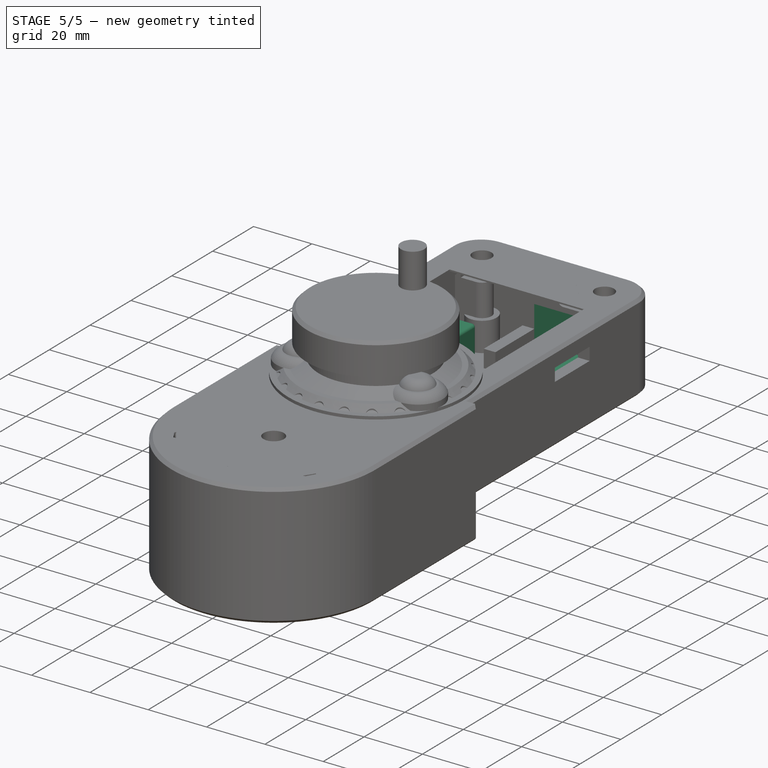
[diagram: stage 5 of 5 — iso view after this stage's code; geometry added in this stage tinted green]
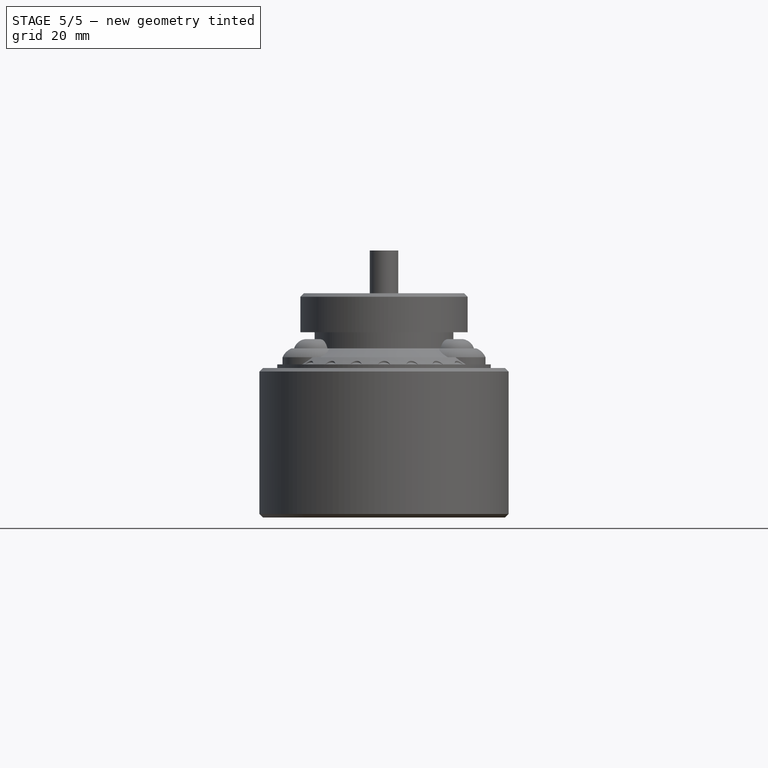
[diagram: stage 5 of 5 — front view after this stage's code; geometry added in this stage tinted green]
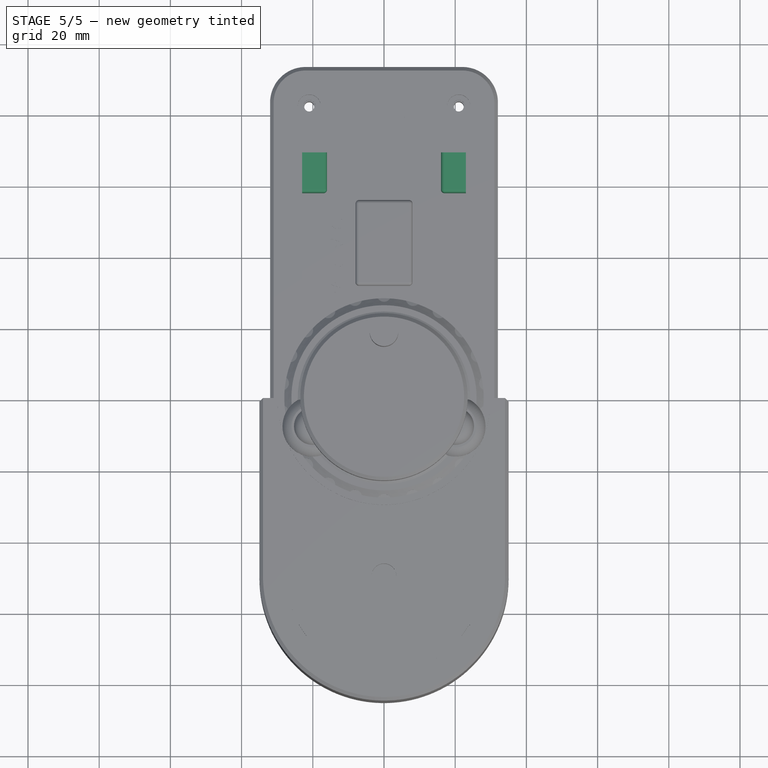
[diagram: stage 5 of 5 — top view after this stage's code; geometry added in this stage tinted green]
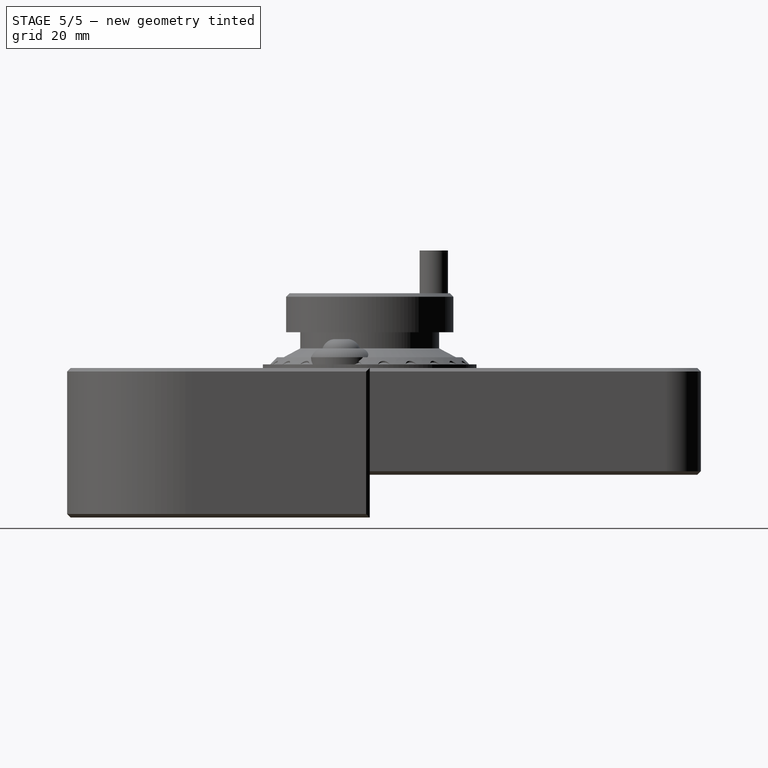
[diagram: stage 5 of 5 — right view after this stage's code; geometry added in this stage tinted green]
FEATURE [Part::FeaturePython] Clone  label="FluidNCLogo"  # Draft clone (typed FeaturePython)
  AttacherType = Attacher::AttachEngine3D
  Fuse = false
  Objects = -> [Extrude]
  Scale = (1,1,1)
FEATURE [Sketcher::SketchObject] Sketch017
  ArcFitTolerance = 1e-06
  AttachmentOffset = pos=(0,0,-23) rot=(0,0,1;0rad)
  AttachmentSupport = -> [XY_Plane003]
  FullyConstrained = true
  MakeInternals = false
  MapMode = 5
  Placement = pos=(0,0,-23) rot=(0,0,1;0rad)
  sketch-geometry (4):
    g0: ArcOfCircle CenterX=0 CenterY=-50 CenterZ=0 NormalX=0 NormalY=0 NormalZ=1 AngleXU=0 Radius=28 StartAngle=4.42264 EndAngle=5.00214
    g1: ArcOfCircle CenterX=0 CenterY=-50 CenterZ=0 NormalX=0 NormalY=0 NormalZ=1 AngleXU=0 Radius=32 StartAngle=4.45971 EndAngle=4.96507
    g2: LineSegment StartX=-8 StartY=-80.9839 StartZ=0 EndX=-8 EndY=-76.8328 EndZ=0
    g3: LineSegment StartX=8 StartY=-80.9839 StartZ=0 EndX=8 EndY=-76.8328 EndZ=0
  constraints (13):
    c: PointOnObject(g0,g-2)
    c: Coincident(g1,g0)
    c: DistanceY(g0,g-1) = 50
    c: Radius(g1) = 32
    c: Radius(g0) = 28
    c: Coincident(g2,g1)
    c: Coincident(g2,g0)
    c: Coincident(g3,g1)
    c: Coincident(g3,g0)
    c: Vertical(g3)
    c: Vertical(g2)
    c: Horizontal(g0,g0)
    c: DistanceX(g0,g0) = 16
FEATURE [PartDesign::Pad] Pad004
  Direction = (0,0,1)
  Length = 13.7
  Length2 = 10
  Profile = -> Sketch017
  ReferenceAxis = -> Sketch017 [N_Axis]
  Suppressed = false
  Type = 0
FEATURE [PartDesign::Body] Body003  label="Bottom RJ12 Filler rounded side"
  AllowCompound = false
  Group = -> [Sketch017,Pad004]
  Origin = -> Origin003
  Tip = -> Pad004
FEATURE [Sketcher::SketchObject] Sketch021
  ArcFitTolerance = 1e-06
  AttachmentOffset = pos=(0,0,-23) rot=(0,0,1;0rad)
  AttachmentSupport = -> [XY_Plane004]
  FullyConstrained = true
  MakeInternals = false
  MapMode = 5
  Placement = pos=(0,0,-23) rot=(0,0,1;0rad)
  sketch-geometry (4):
    g0: LineSegment StartX=-8 StartY=93 StartZ=0 EndX=-8 EndY=89 EndZ=0
    g1: LineSegment StartX=-8 StartY=89 StartZ=0 EndX=8 EndY=89 EndZ=0
    g2: LineSegment StartX=8 StartY=89 StartZ=0 EndX=8 EndY=93 EndZ=0
    g3: LineSegment StartX=8 StartY=93 StartZ=0 EndX=-8 EndY=93 EndZ=0
  constraints (11):
    c: Coincident(g0,g1)
    c: Coincident(g1,g2)
    c: Coincident(g2,g3)
    c: Coincident(g3,g0)
    c: Vertical(g0)
    c: Vertical(g2)
    c: Horizontal(g3)
    c: Symmetric(g1,g0,g-2)
    c: DistanceX(g1,g1) = 16
    c: DistanceY(g-1,g1) = 89
    c: DistanceY(g0,g0) = 4
FEATURE [PartDesign::Pad] Pad005
  Direction = (0,0,1)
  Length = 13.7
  Length2 = 10
  Profile = -> Sketch021
  ReferenceAxis = -> Sketch021 [N_Axis]
  Suppressed = false
  Type = 0
FEATURE [PartDesign::Body] Body004  label="Bottom RJ12 Filler squared side"
  AllowCompound = false
  Group = -> [Sketch021,Pad005]
  Origin = -> Origin004
  Tip = -> Pad005
FEATURE [Part::Part2DObjectPython] ShapeString  # Draft 2D object (typed FeaturePython)
  FontFile = <path>
  Fuse = false
  Justification = 6
  JustificationReference = 0
  KeepLeftMargin = false
  MakeFace = true
  ObliqueAngle = 0
  Placement = pos=(-11,-18,-23) rot=(0,0,1;1.5708rad)
  ScaleToSize = true
  Size = 4
  String = CYD DIAL BOTTOM REV C
  Tracking = 0
FEATURE [Part::Extrusion] Extrude001  label="CYD DIAL BOTTOM REV C"
  Base = -> ShapeString
  Dir = (0,0,1)
  DirMode = 0
  FaceMakerClass = Part::FaceMakerBullseye
  FaceMakerMode = 3
  LengthFwd = 0.4
  LengthRev = 0
  Solid = false
  Symmetric = false
FEATURE [PartDesign::Body] Body006  label="Magnet Holder 001"
  AllowCompound = false
  Group = -> [Sketch023,Pad007,Sketch024,Pocket014,Fillet]
  Origin = -> Origin006
  Placement = pos=(-23,-40,-23) rot=(0,0,1;0rad)
  Tip = -> Fillet
FEATURE [Part::FeaturePython] Clone002  label="Magnet Holder 002"  # Draft clone (typed FeaturePython)
  AttacherType = Attacher::AttachEngine3D
  Fuse = false
  Objects = -> [Body006]
  Placement = pos=(-23,65,-23) rot=(0,0,1;0rad)
  Scale = (1,1,1)
FEATURE [Part::FeaturePython] Clone003  label="Magnet Holder 003"  # Draft clone (typed FeaturePython)
  AttacherType = Attacher::AttachEngine3D
  Fuse = false
  Objects = -> [Clone002]
  Placement = pos=(23,65,-23) rot=(0,0,1;0rad)
  Scale = (1,1,1)
FEATURE [Part::Part2DObjectPython] ShapeString001  # Draft 2D object (typed FeaturePython)
  FontFile = <path>
  Fuse = false
  Justification = 6
  JustificationReference = 0
  KeepLeftMargin = false
  MakeFace = true
  ObliqueAngle = 0
  Placement = pos=(-27.7,-20,0.5) rot=(-1,0,0;3.14159rad)
  ScaleToSize = true
  Size = 3.8
  String = CYD DIAL TOP REV C
  Tracking = 0
FEATURE [Part::Extrusion] Extrude002  label="CYD DIAL TOP REV C"
  Base = -> ShapeString001
  Dir = (0,0,-1)
  DirMode = 0
  FaceMakerClass = Part::FaceMakerBullseye
  FaceMakerMode = 3
  LengthFwd = 0.4
  LengthRev = 0
  Solid = false
  Symmetric = false
FEATURE [PartDesign::Body] Body  label="Bottom"
  AllowCompound = false
  Group = -> [Sketch,Sketch001,Sketch002,Sketch003,Sketch004,Sketch005,Sketch006,Sketch007,Pad,Pocket,Pocket001,Pocket002,Pocket003,Pocket004,Pad001,Pocket005,Sketch008,Pocket006,Sketch009,Pocket007,Chamfer,Sketch014,Sketch016,Pad003,Pocket011,Sketch036,Pocket019]
  Origin = -> Origin
  Tip = -> Pocket019
FEATURE [Part::Compound] Compound002  label="Bottom Rev C"
  Links = -> [Extrude001,Body]
FEATURE [Part::Compound] Compound001  label="Bottom Magnet Holder"
  Links = -> [Body006,Clone002,Clone003,Clone006]
FEATURE [Sketcher::SketchObject] Sketch040
  ArcFitTolerance = 1e-06
  AttachmentOffset = pos=(0,0,0.5) rot=(0,0,1;0rad)
  AttachmentSupport = -> [XY_Plane011]
  FullyConstrained = true
  MakeInternals = false
  MapMode = 5
  Placement = pos=(0,0,0.5) rot=(0,0,1;0rad)
  sketch-geometry (1):
    g0: Circle CenterX=0 CenterY=-8 CenterZ=0 NormalX=0 NormalY=0 NormalZ=1 AngleXU=0 Radius=6.75
  constraints (3):
    c: PointOnObject(g0,g-2)
    c: DistanceY(g0,g-1) = 8
    c: Diameter(g0) = 13.5
FEATURE [PartDesign::Pad] Pad014
  Direction = (0,0,1)
  Length = 4.5
  Length2 = 10
  Profile = -> Sketch040
  ReferenceAxis = -> Sketch040 [N_Axis]
  Suppressed = false
  Type = 0
FEATURE [PartDesign::Body] Body011  label="Button Caps Center"
  AllowCompound = false
  Group = -> [Sketch040,Pad014]
  Origin = -> Origin011
  Tip = -> Pad014
FEATURE [Part::FeaturePython] Clone008  label="Button Caps Right"  # Draft clone (typed FeaturePython)
  AttacherType = Attacher::AttachEngine3D
  Fuse = false
  Objects = -> [Body011]
  Placement = pos=(20,0,0) rot=(0,0,1;0rad)
  Scale = (1,1,1)
FEATURE [Part::FeaturePython] Clone009  label="Button Caps Left"  # Draft clone (typed FeaturePython)
  AttacherType = Attacher::AttachEngine3D
  Fuse = false
  Objects = -> [Body011]
  Placement = pos=(-20,0,0) rot=(0,0,1;0rad)
  Scale = (1,1,1)
FEATURE [Part::Compound] Compound004  label="Button Caps"
  Links = -> [Clone009,Clone008,Body011]
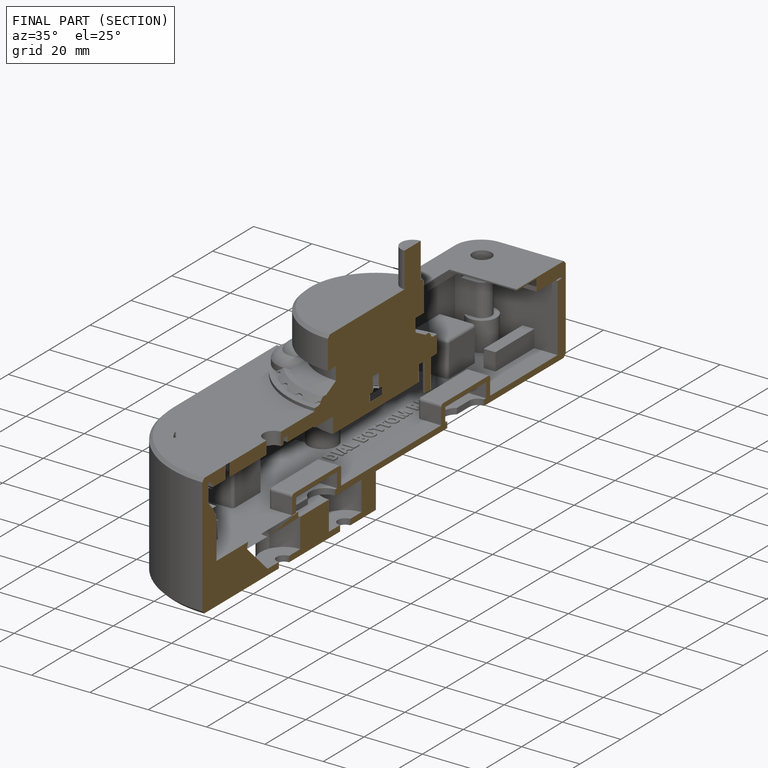
[diagram: finished part — half-section view (interior)]
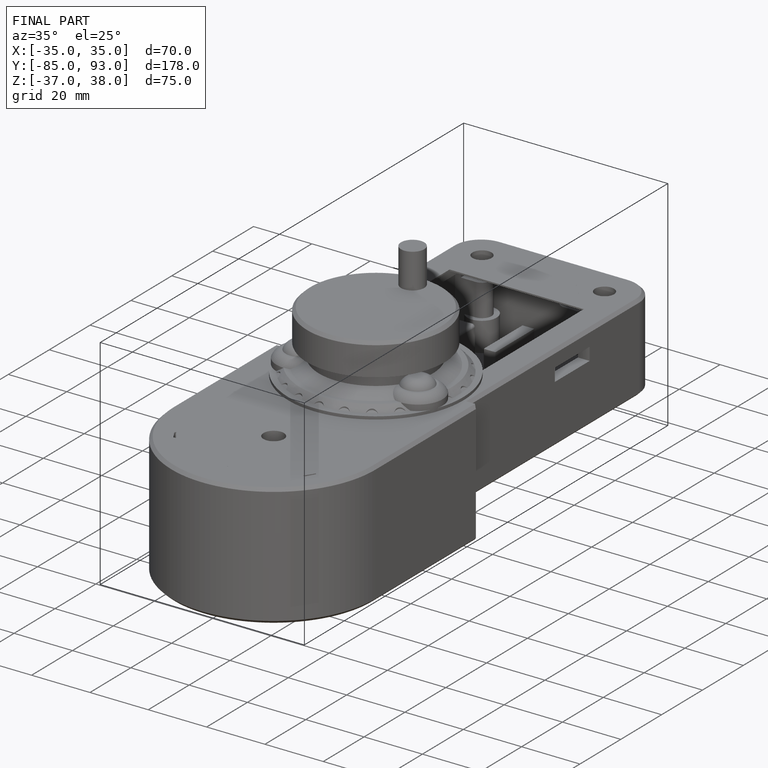
[diagram: finished part — iso view with bounding-box wireframe]
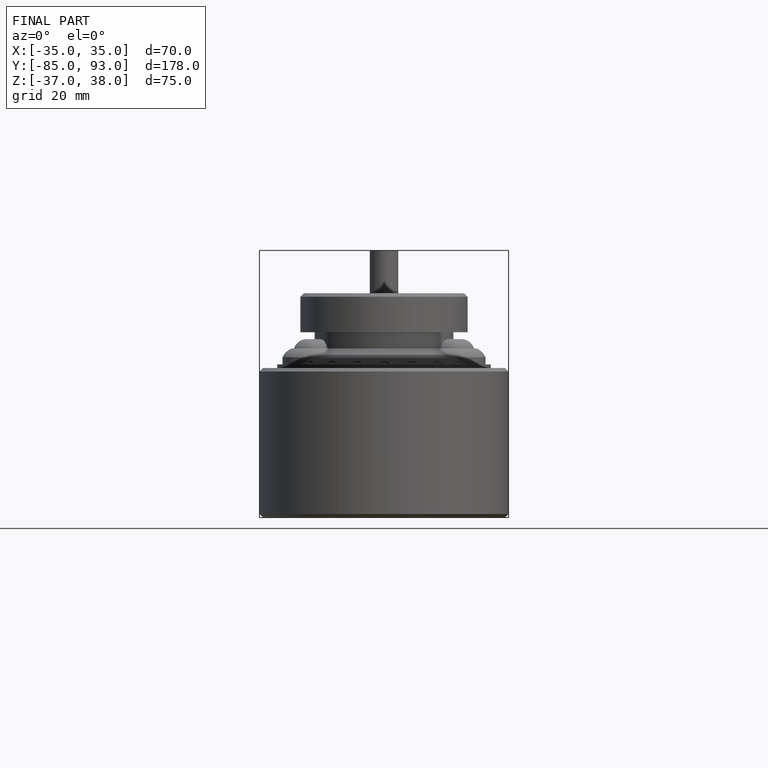
[diagram: finished part — front view with bounding-box wireframe]
